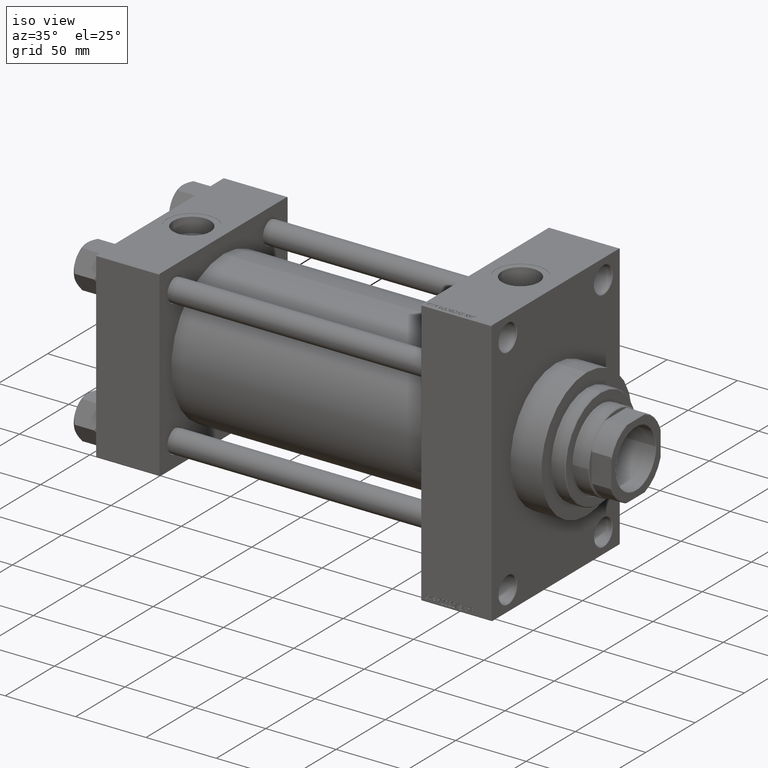
[diagram: clean part render]
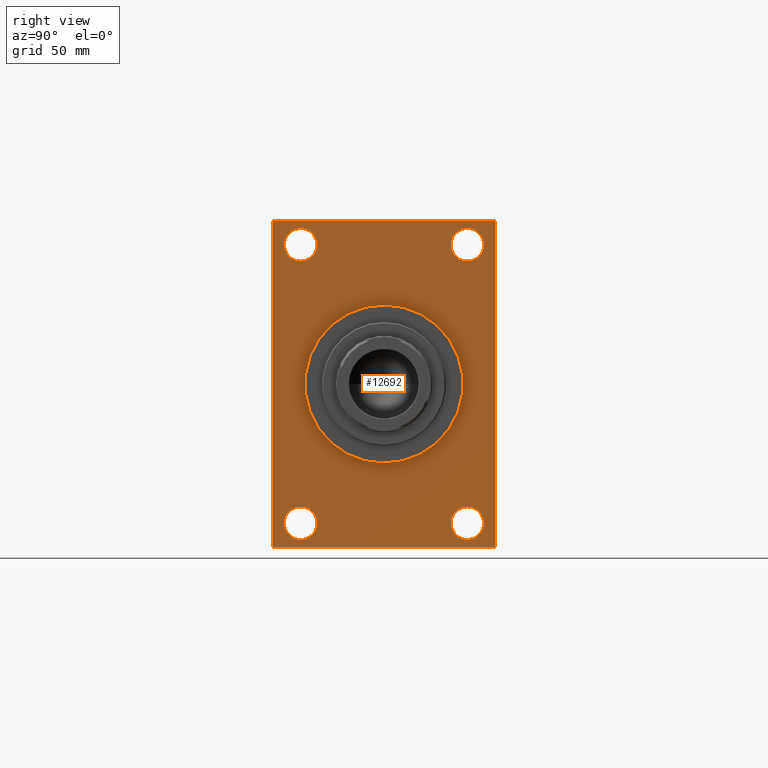
[diagram: tour spotlight — one face highlighted and labeled with its STEP entity id]
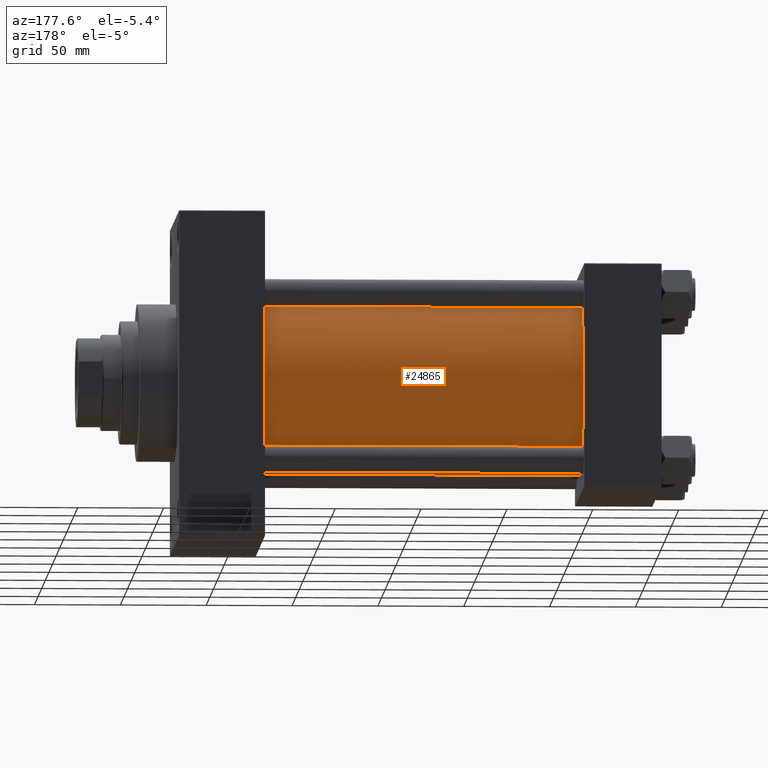
[diagram: tour spotlight — one face highlighted and labeled with its STEP entity id]
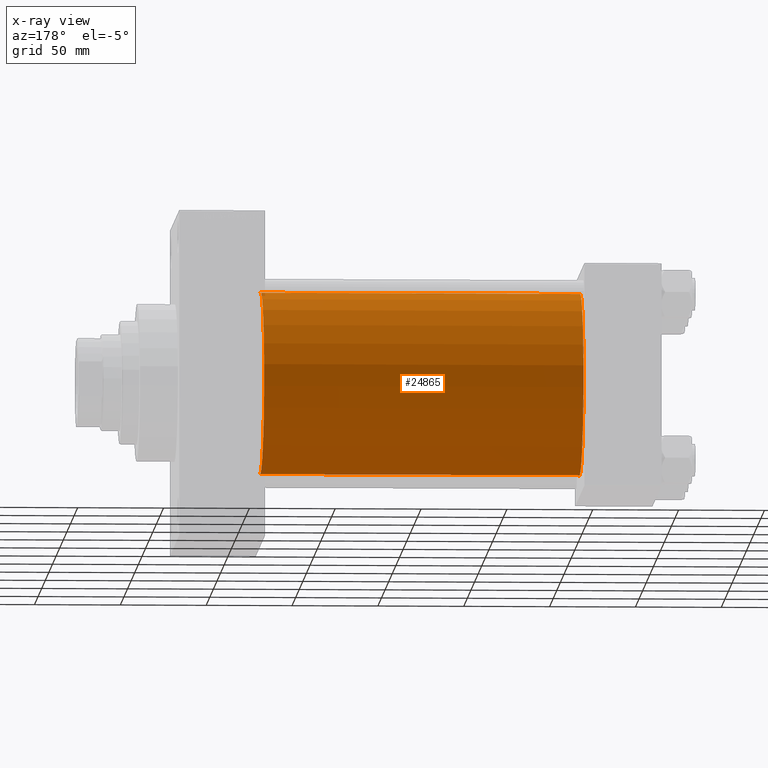
[diagram: x-ray of the same camera — body ghosted, this tour face saturated]
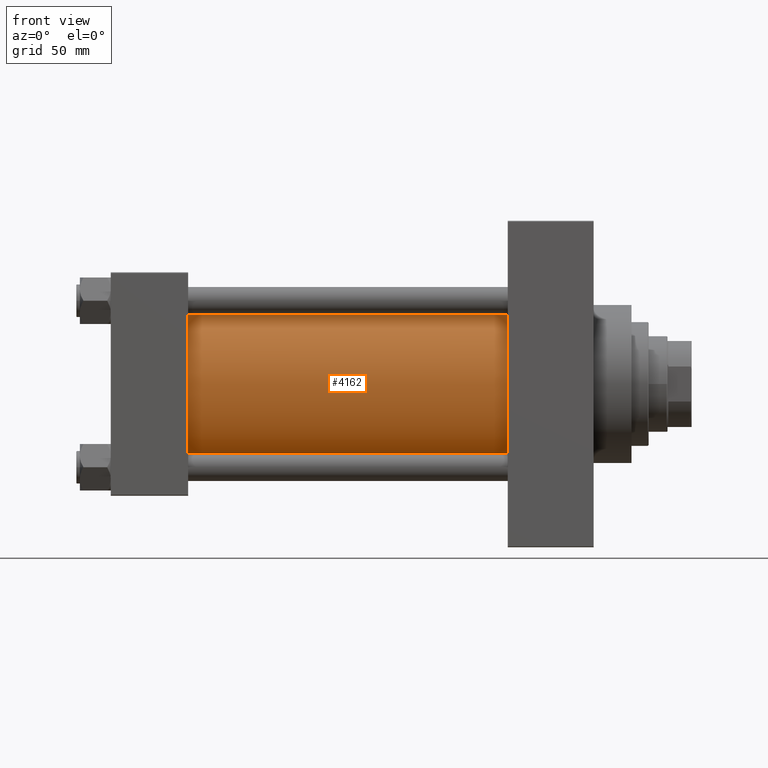
[diagram: tour spotlight — one face highlighted and labeled with its STEP entity id]
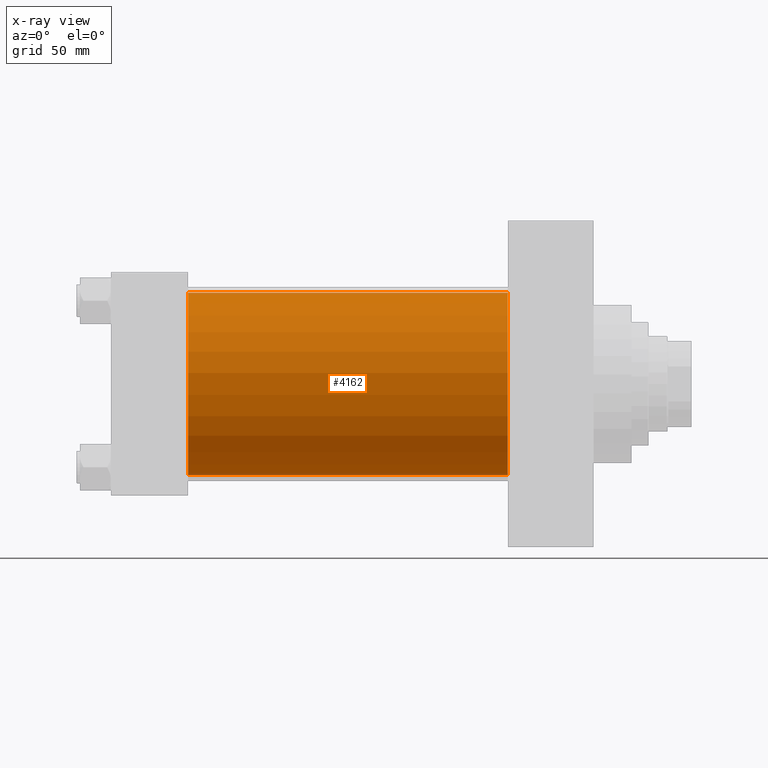
[diagram: x-ray of the same camera — body ghosted, this tour face saturated]
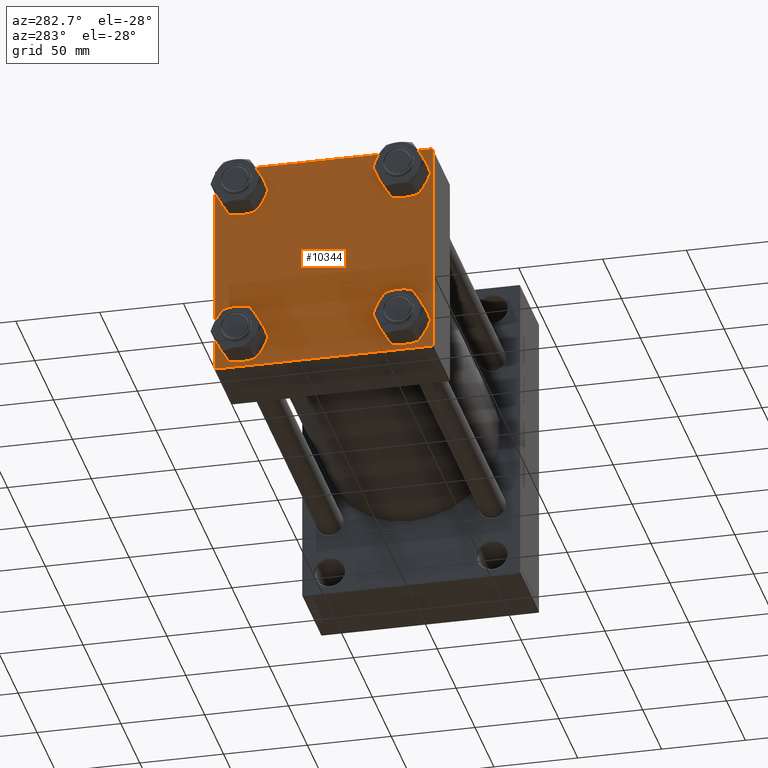
[diagram: tour spotlight — one face highlighted and labeled with its STEP entity id]
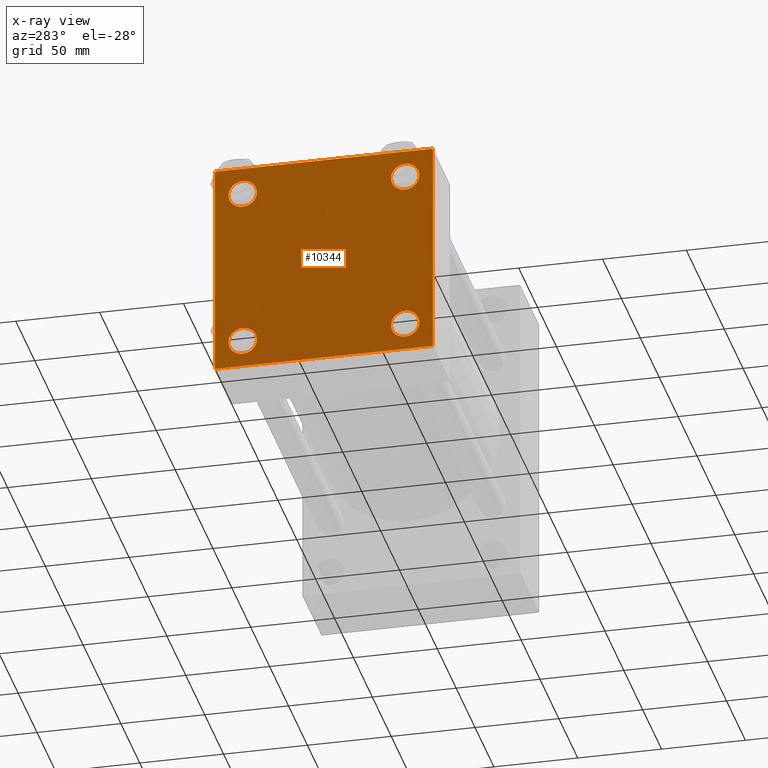
[diagram: x-ray of the same camera — body ghosted, this tour face saturated]
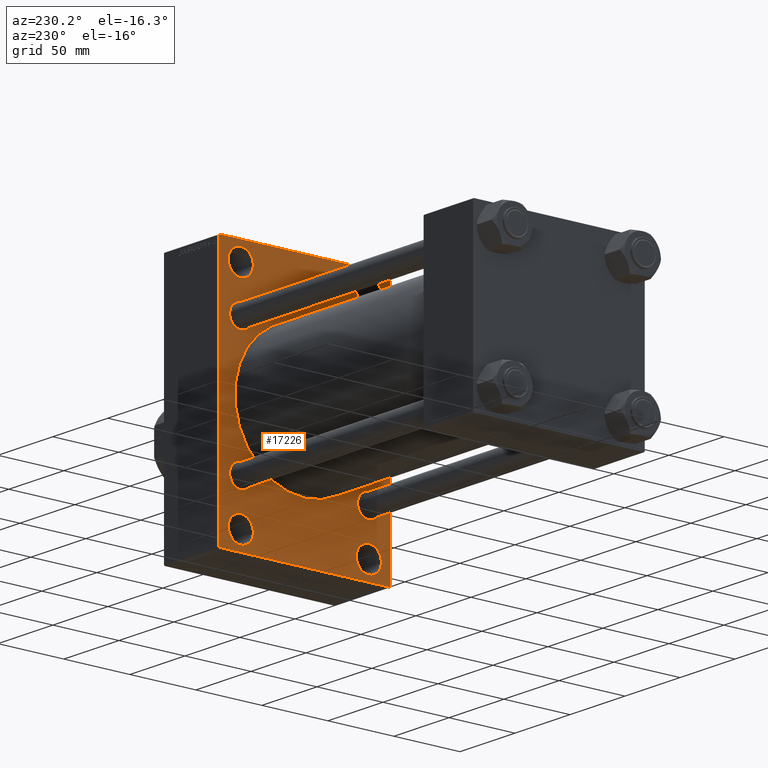
[diagram: tour spotlight — one face highlighted and labeled with its STEP entity id]
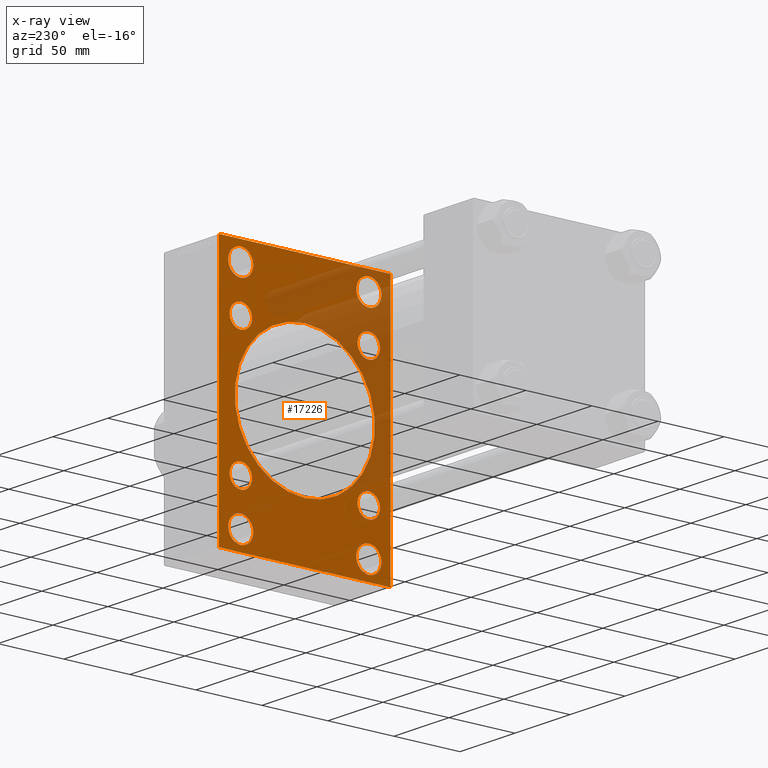
[diagram: x-ray of the same camera — body ghosted, this tour face saturated]
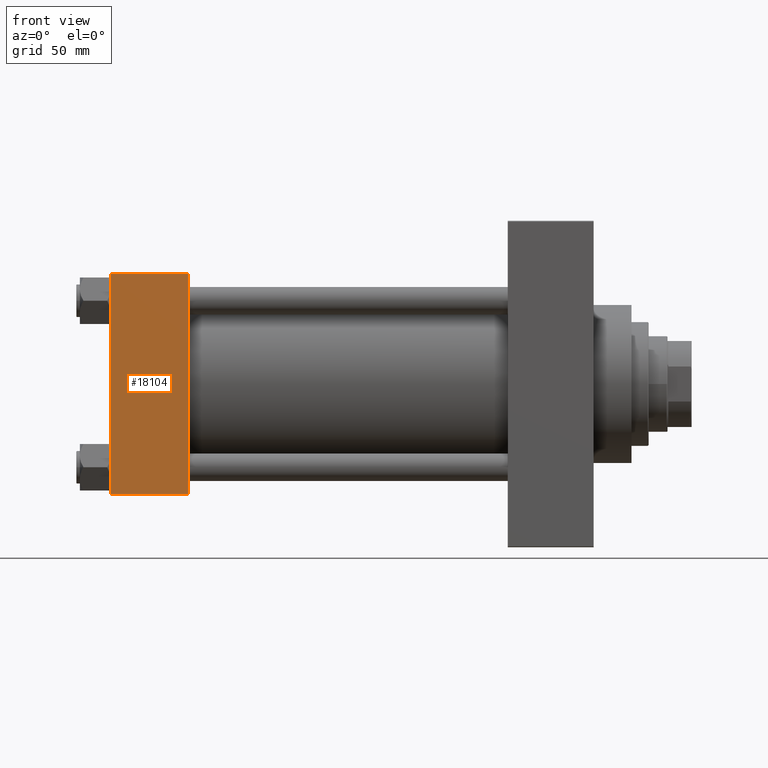
[diagram: tour spotlight — one face highlighted and labeled with its STEP entity id]
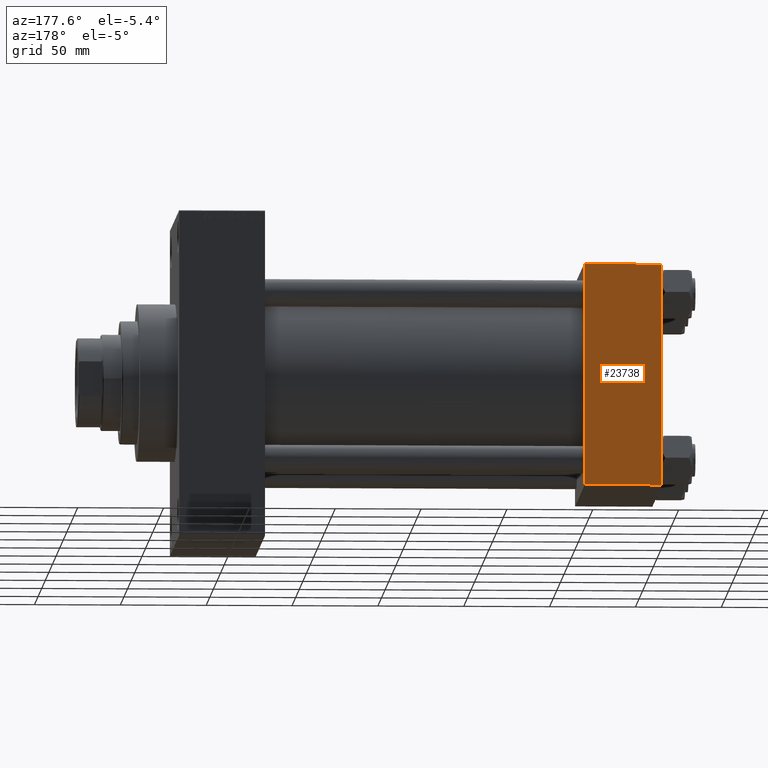
[diagram: tour spotlight — one face highlighted and labeled with its STEP entity id]
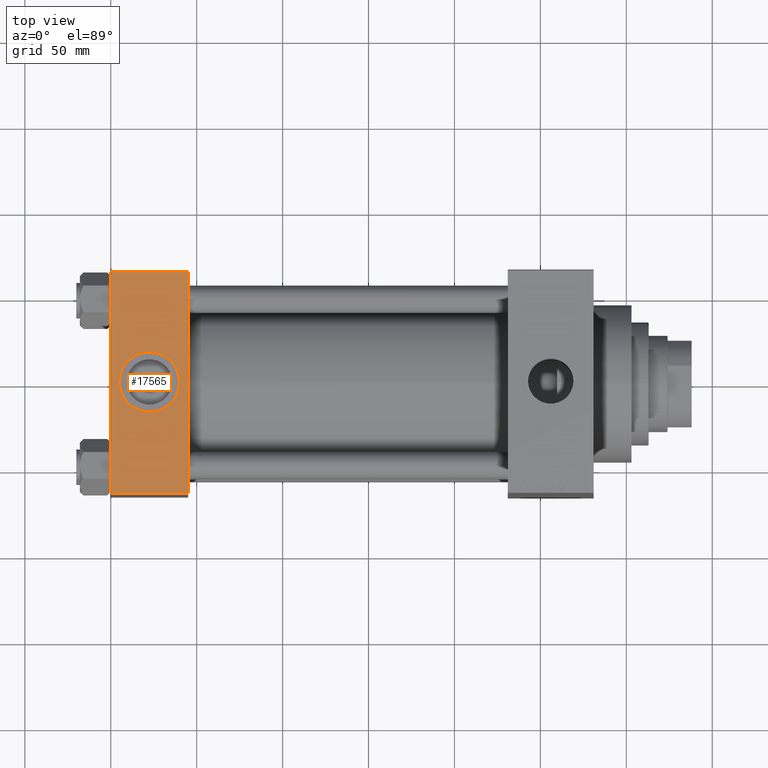
[diagram: tour spotlight — one face highlighted and labeled with its STEP entity id]
A machine part: a face-by-face anatomy tour. The part has 1151 B-rep faces; the first image is the clean iso view, then the 8 largest visible faces are spotlighted one at a time (largest first), each with its STEP entity span.

Face 1 — right view, entity #12692. In plain terms, the highlighted planar face has unit normal (-1, 0, 0).
Definition (entity closure, byte-faithful):
#423 = DIRECTION ( 'NONE',  ( 0.000000000000000000, 0.000000000000000000, -1.000000000000000000 ) ) ;
#508 = AXIS2_PLACEMENT_3D ( 'NONE', #38368, #1445, #20034 ) ;
#516 = AXIS2_PLACEMENT_3D ( 'NONE', #17097, #46547, #6467 ) ;
#543 = CARTESIAN_POINT ( 'NONE',  ( 281.0000000000000000, 64.99999999999998579, -94.49999999999997158 ) ) ;
#644 = AXIS2_PLACEMENT_3D ( 'NONE', #35599, #21125, #10267 ) ;
#1238 = EDGE_CURVE ( 'NONE', #12510, #4317, #42903, .T. ) ;
#1445 = DIRECTION ( 'NONE',  ( -1.000000000000000000, 0.000000000000000000, -0.000000000000000000 ) ) ;
#1463 = EDGE_CURVE ( 'NONE', #33885, #40786, #40983, .T. ) ;
#1598 = LINE ( 'NONE', #17289, #19996 ) ;
#1899 = DIRECTION ( 'NONE',  ( 0.000000000000000000, 0.000000000000000000, 1.000000000000000000 ) ) ;
#2071 = VERTEX_POINT ( 'NONE', #27863 ) ;
#2227 = CARTESIAN_POINT ( 'NONE',  ( 281.0000000000000000, 48.50000000000000711, 90.50000000000007105 ) ) ;
#2257 = EDGE_CURVE ( 'NONE', #35200, #46972, #19144, .T. ) ;
#2612 = ORIENTED_EDGE ( 'NONE', *, *, #5199, .T. ) ;
#2673 = DIRECTION ( 'NONE',  ( -1.000000000000000000, 0.000000000000000000, -0.000000000000000000 ) ) ;
#3096 = ORIENTED_EDGE ( 'NONE', *, *, #26577, .T. ) ;
#3202 = AXIS2_PLACEMENT_3D ( 'NONE', #5173, #19455, #8337 ) ;
#3460 = EDGE_CURVE ( 'NONE', #35989, #46972, #39869, .T. ) ;
#3550 = VERTEX_POINT ( 'NONE', #18384 ) ;
#4191 = CARTESIAN_POINT ( 'NONE',  ( 281.0000000000000000, -48.50000000000000000, 71.49999999999994316 ) ) ;
#4317 = VERTEX_POINT ( 'NONE', #18925 ) ;
#4331 = VERTEX_POINT ( 'NONE', #4191 ) ;
#4936 = EDGE_CURVE ( 'NONE', #4317, #12510, #26049, .T. ) ;
#5173 = CARTESIAN_POINT ( 'NONE',  ( 281.0000000000000000, 0.000000000000000000, 0.000000000000000000 ) ) ;
#5199 = EDGE_CURVE ( 'NONE', #2071, #39681, #29184, .T. ) ;
#5480 = EDGE_LOOP ( 'NONE', ( #44525, #13416, #27767, #30584, #13904, #18676, #41205, #34848 ) ) ;
#6010 = CARTESIAN_POINT ( 'NONE',  ( 281.0000000000000000, -65.00000000000001421, 94.49999999999997158 ) ) ;
#6075 = CARTESIAN_POINT ( 'NONE',  ( 281.0000000000000000, 64.99999999999998579, -94.49999999999997158 ) ) ;
#6467 = DIRECTION ( 'NONE',  ( 0.000000000000000000, 0.000000000000000000, 1.000000000000000000 ) ) ;
#6753 = LINE ( 'NONE', #17866, #16307 ) ;
#7026 = DIRECTION ( 'NONE',  ( 1.000000000000000000, 0.000000000000000000, 0.000000000000000000 ) ) ;
#7262 = CARTESIAN_POINT ( 'NONE',  ( 281.0000000000000000, 48.50000000000000711, -81.00000000000001421 ) ) ;
#8097 = EDGE_LOOP ( 'NONE', ( #15166, #27458 ) ) ;
#8208 = DIRECTION ( 'NONE',  ( -1.000000000000000000, 0.000000000000000000, -0.000000000000000000 ) ) ;
#8337 = DIRECTION ( 'NONE',  ( -0.000000000000000000, 0.000000000000000000, 1.000000000000000000 ) ) ;
#8847 = VERTEX_POINT ( 'NONE', #30169 ) ;
#8879 = EDGE_CURVE ( 'NONE', #4331, #8847, #20024, .T. ) ;
#8883 = ORIENTED_EDGE ( 'NONE', *, *, #40417, .T. ) ;
#9795 = DIRECTION ( 'NONE',  ( 0.000000000000000000, 0.7071067811865474617, -0.7071067811865474617 ) ) ;
#10244 = AXIS2_PLACEMENT_3D ( 'NONE', #28714, #39087, #46343 ) ;
#10267 = DIRECTION ( 'NONE',  ( 0.000000000000000000, 0.000000000000000000, 1.000000000000000000 ) ) ;
#11255 = VERTEX_POINT ( 'NONE', #43187 ) ;
#11602 = EDGE_CURVE ( 'NONE', #35989, #31167, #31303, .T. ) ;
#11870 = DIRECTION ( 'NONE',  ( 0.000000000000000000, -1.000000000000000000, -1.067522139062650425E-16 ) ) ;
#11973 = FACE_BOUND ( 'NONE', #29870, .T. ) ;
#12245 = EDGE_CURVE ( 'NONE', #38135, #33885, #40030, .T. ) ;
#12510 = VERTEX_POINT ( 'NONE', #43379 ) ;
#12692 = ADVANCED_FACE ( 'NONE', ( #44794, #39976, #32739, #29115, #11973, #23541 ), #38487, .F. ) ;
#13240 = DIRECTION ( 'NONE',  ( -1.000000000000000000, 0.000000000000000000, -0.000000000000000000 ) ) ;
#13416 = ORIENTED_EDGE ( 'NONE', *, *, #36337, .T. ) ;
#13904 = ORIENTED_EDGE ( 'NONE', *, *, #3460, .F. ) ;
#14707 = CIRCLE ( 'NONE', #30927, 9.500000000000063949 ) ;
#15150 = CARTESIAN_POINT ( 'NONE',  ( 281.0000000000000000, -65.00000000000001421, 94.99999999999997158 ) ) ;
#15166 = ORIENTED_EDGE ( 'NONE', *, *, #1238, .T. ) ;
#15481 = CARTESIAN_POINT ( 'NONE',  ( 281.0000000000000000, 48.50000000000000711, 71.49999999999994316 ) ) ;
#16307 = VECTOR ( 'NONE', #32587, 1000.000000000000000 ) ;
#16353 = CARTESIAN_POINT ( 'NONE',  ( 281.0000000000000000, -65.00000000000001421, 94.49999999999997158 ) ) ;
#16691 = DIRECTION ( 'NONE',  ( 0.000000000000000000, 0.000000000000000000, 1.000000000000000000 ) ) ;
#17097 = CARTESIAN_POINT ( 'NONE',  ( 281.0000000000000000, 48.50000000000000711, 81.00000000000000000 ) ) ;
#17141 = AXIS2_PLACEMENT_3D ( 'NONE', #24003, #7026, #40325 ) ;
#17289 = CARTESIAN_POINT ( 'NONE',  ( 281.0000000000000000, -64.50000000000001421, -95.00000000000002842 ) ) ;
#17651 = EDGE_LOOP ( 'NONE', ( #2612, #22248 ) ) ;
#17760 = ORIENTED_EDGE ( 'NONE', *, *, #44293, .F. ) ;
#17866 = CARTESIAN_POINT ( 'NONE',  ( 281.0000000000000000, 64.99999999999997158, 94.99999999999997158 ) ) ;
#17940 = ORIENTED_EDGE ( 'NONE', *, *, #39979, .F. ) ;
#18331 = CARTESIAN_POINT ( 'NONE',  ( 281.0000000000000000, -48.49999999999999289, -81.00000000000001421 ) ) ;
#18384 = CARTESIAN_POINT ( 'NONE',  ( 281.0000000000000000, 0.000000000000000000, 46.00000000000000000 ) ) ;
#18676 = ORIENTED_EDGE ( 'NONE', *, *, #11602, .T. ) ;
#18925 = CARTESIAN_POINT ( 'NONE',  ( 281.0000000000000000, -48.49999999999999289, -71.49999999999995737 ) ) ;
#19144 = LINE ( 'NONE', #543, #37564 ) ;
#19455 = DIRECTION ( 'NONE',  ( -1.000000000000000000, 0.000000000000000000, -0.000000000000000000 ) ) ;
#19928 = EDGE_CURVE ( 'NONE', #35409, #30537, #31046, .T. ) ;
#19996 = VECTOR ( 'NONE', #9795, 1000.000000000000114 ) ;
#20024 = CIRCLE ( 'NONE', #37765, 9.500000000000063949 ) ;
#20034 = DIRECTION ( 'NONE',  ( 0.000000000000000000, 0.000000000000000000, 1.000000000000000000 ) ) ;
#20247 = CARTESIAN_POINT ( 'NONE',  ( 281.0000000000000000, 48.50000000000000711, -71.49999999999995737 ) ) ;
#21125 = DIRECTION ( 'NONE',  ( -1.000000000000000000, 0.000000000000000000, -0.000000000000000000 ) ) ;
#22248 = ORIENTED_EDGE ( 'NONE', *, *, #33497, .T. ) ;
#22937 = DIRECTION ( 'NONE',  ( 0.000000000000000000, 0.000000000000000000, 1.000000000000000000 ) ) ;
#23541 = FACE_OUTER_BOUND ( 'NONE', #5480, .T. ) ;
#23564 = DIRECTION ( 'NONE',  ( 0.000000000000000000, 0.000000000000000000, -1.000000000000000000 ) ) ;
#24003 = CARTESIAN_POINT ( 'NONE',  ( 281.0000000000000000, 0.000000000000000000, 0.000000000000000000 ) ) ;
#24347 = CARTESIAN_POINT ( 'NONE',  ( 281.0000000000000000, -48.50000000000000000, 81.00000000000000000 ) ) ;
#24408 = VECTOR ( 'NONE', #423, 1000.000000000000000 ) ;
#25529 = VECTOR ( 'NONE', #27677, 1000.000000000000114 ) ;
#26049 = CIRCLE ( 'NONE', #29153, 9.500000000000063949 ) ;
#26577 = EDGE_CURVE ( 'NONE', #30537, #35409, #42139, .T. ) ;
#26947 = DIRECTION ( 'NONE',  ( 1.000000000000000000, 0.000000000000000000, 0.000000000000000000 ) ) ;
#27458 = ORIENTED_EDGE ( 'NONE', *, *, #4936, .T. ) ;
#27677 = DIRECTION ( 'NONE',  ( 0.000000000000000000, -0.7071067811865474617, 0.7071067811865474617 ) ) ;
#27767 = ORIENTED_EDGE ( 'NONE', *, *, #30519, .F. ) ;
#27863 = CARTESIAN_POINT ( 'NONE',  ( 281.0000000000000000, 48.50000000000000711, -90.50000000000008527 ) ) ;
#28714 = CARTESIAN_POINT ( 'NONE',  ( 281.0000000000000000, 48.50000000000000711, 81.00000000000000000 ) ) ;
#29115 = FACE_BOUND ( 'NONE', #35419, .T. ) ;
#29123 = AXIS2_PLACEMENT_3D ( 'NONE', #7262, #8208, #22937 ) ;
#29153 = AXIS2_PLACEMENT_3D ( 'NONE', #18331, #40292, #44390 ) ;
#29184 = CIRCLE ( 'NONE', #644, 9.500000000000063949 ) ;
#29390 = VECTOR ( 'NONE', #39795, 1000.000000000000000 ) ;
#29870 = EDGE_LOOP ( 'NONE', ( #17760, #17940 ) ) ;
#30169 = CARTESIAN_POINT ( 'NONE',  ( 281.0000000000000000, -48.50000000000000000, 90.50000000000007105 ) ) ;
#30519 = EDGE_CURVE ( 'NONE', #35200, #11255, #44217, .T. ) ;
#30537 = VERTEX_POINT ( 'NONE', #15481 ) ;
#30584 = ORIENTED_EDGE ( 'NONE', *, *, #2257, .T. ) ;
#30647 = CARTESIAN_POINT ( 'NONE',  ( 281.0000000000000000, 64.99999999999997158, 94.49999999999997158 ) ) ;
#30927 = AXIS2_PLACEMENT_3D ( 'NONE', #31893, #2673, #16691 ) ;
#31021 = CIRCLE ( 'NONE', #17141, 46.00000000000000000 ) ;
#31046 = CIRCLE ( 'NONE', #10244, 9.500000000000063949 ) ;
#31167 = VERTEX_POINT ( 'NONE', #35910 ) ;
#31303 = LINE ( 'NONE', #38784, #25529 ) ;
#31893 = CARTESIAN_POINT ( 'NONE',  ( 281.0000000000000000, -48.50000000000000000, 81.00000000000000000 ) ) ;
#32587 = DIRECTION ( 'NONE',  ( 0.000000000000000000, -1.000000000000000000, 0.000000000000000000 ) ) ;
#32690 = CARTESIAN_POINT ( 'NONE',  ( 281.0000000000000000, 64.49999999999992895, -95.00000000000001421 ) ) ;
#32739 = FACE_BOUND ( 'NONE', #17651, .T. ) ;
#33010 = CARTESIAN_POINT ( 'NONE',  ( 281.0000000000000000, -65.00000000000001421, -94.50000000000002842 ) ) ;
#33021 = VECTOR ( 'NONE', #11870, 1000.000000000000000 ) ;
#33497 = EDGE_CURVE ( 'NONE', #39681, #2071, #43765, .T. ) ;
#33840 = EDGE_LOOP ( 'NONE', ( #42557, #8883 ) ) ;
#33885 = VERTEX_POINT ( 'NONE', #16353 ) ;
#34495 = VECTOR ( 'NONE', #47136, 1000.000000000000000 ) ;
#34737 = CIRCLE ( 'NONE', #38594, 46.00000000000000000 ) ;
#34848 = ORIENTED_EDGE ( 'NONE', *, *, #12245, .T. ) ;
#35200 = VERTEX_POINT ( 'NONE', #32690 ) ;
#35409 = VERTEX_POINT ( 'NONE', #2227 ) ;
#35419 = EDGE_LOOP ( 'NONE', ( #3096, #46734 ) ) ;
#35599 = CARTESIAN_POINT ( 'NONE',  ( 281.0000000000000000, 48.50000000000000711, -81.00000000000001421 ) ) ;
#35910 = CARTESIAN_POINT ( 'NONE',  ( 281.0000000000000000, 64.49999999999997158, 94.99999999999997158 ) ) ;
#35989 = VERTEX_POINT ( 'NONE', #30647 ) ;
#36042 = CARTESIAN_POINT ( 'NONE',  ( 281.0000000000000000, 0.000000000000000000, 0.000000000000000000 ) ) ;
#36263 = CARTESIAN_POINT ( 'NONE',  ( 281.0000000000000000, 64.99999999999997158, 94.99999999999997158 ) ) ;
#36337 = EDGE_CURVE ( 'NONE', #40786, #11255, #1598, .T. ) ;
#37208 = CARTESIAN_POINT ( 'NONE',  ( 281.0000000000000000, 64.99999999999998579, -95.00000000000001421 ) ) ;
#37564 = VECTOR ( 'NONE', #44255, 999.9999999999998863 ) ;
#37670 = CARTESIAN_POINT ( 'NONE',  ( 281.0000000000000000, -64.50000000000002842, 94.99999999999997158 ) ) ;
#37752 = CARTESIAN_POINT ( 'NONE',  ( 281.0000000000000000, 5.633375276077824704E-15, -46.00000000000000000 ) ) ;
#37765 = AXIS2_PLACEMENT_3D ( 'NONE', #24347, #13240, #1899 ) ;
#38135 = VERTEX_POINT ( 'NONE', #37670 ) ;
#38368 = CARTESIAN_POINT ( 'NONE',  ( 281.0000000000000000, -48.49999999999999289, -81.00000000000001421 ) ) ;
#38487 = PLANE ( 'NONE',  #3202 ) ;
#38594 = AXIS2_PLACEMENT_3D ( 'NONE', #36042, #26947, #23564 ) ;
#38784 = CARTESIAN_POINT ( 'NONE',  ( 281.0000000000000000, 64.49999999999997158, 94.99999999999997158 ) ) ;
#39036 = VERTEX_POINT ( 'NONE', #37752 ) ;
#39087 = DIRECTION ( 'NONE',  ( -1.000000000000000000, 0.000000000000000000, -0.000000000000000000 ) ) ;
#39681 = VERTEX_POINT ( 'NONE', #20247 ) ;
#39795 = DIRECTION ( 'NONE',  ( -0.000000000000000000, -0.7071067811865378028, -0.7071067811865573427 ) ) ;
#39869 = LINE ( 'NONE', #36263, #34495 ) ;
#39976 = FACE_BOUND ( 'NONE', #8097, .T. ) ;
#39979 = EDGE_CURVE ( 'NONE', #39036, #3550, #34737, .T. ) ;
#40030 = LINE ( 'NONE', #6010, #29390 ) ;
#40292 = DIRECTION ( 'NONE',  ( -1.000000000000000000, 0.000000000000000000, -0.000000000000000000 ) ) ;
#40325 = DIRECTION ( 'NONE',  ( 0.000000000000000000, 0.000000000000000000, -1.000000000000000000 ) ) ;
#40417 = EDGE_CURVE ( 'NONE', #8847, #4331, #14707, .T. ) ;
#40786 = VERTEX_POINT ( 'NONE', #33010 ) ;
#40983 = LINE ( 'NONE', #15150, #24408 ) ;
#41205 = ORIENTED_EDGE ( 'NONE', *, *, #41684, .T. ) ;
#41684 = EDGE_CURVE ( 'NONE', #31167, #38135, #6753, .T. ) ;
#42139 = CIRCLE ( 'NONE', #516, 9.500000000000063949 ) ;
#42557 = ORIENTED_EDGE ( 'NONE', *, *, #8879, .T. ) ;
#42903 = CIRCLE ( 'NONE', #508, 9.500000000000063949 ) ;
#43187 = CARTESIAN_POINT ( 'NONE',  ( 281.0000000000000000, -64.50000000000001421, -95.00000000000002842 ) ) ;
#43379 = CARTESIAN_POINT ( 'NONE',  ( 281.0000000000000000, -48.49999999999999289, -90.50000000000008527 ) ) ;
#43765 = CIRCLE ( 'NONE', #29123, 9.500000000000063949 ) ;
#44217 = LINE ( 'NONE', #37208, #33021 ) ;
#44255 = DIRECTION ( 'NONE',  ( -0.000000000000000000, 0.7071067811865574537, 0.7071067811865376918 ) ) ;
#44293 = EDGE_CURVE ( 'NONE', #3550, #39036, #31021, .T. ) ;
#44390 = DIRECTION ( 'NONE',  ( 0.000000000000000000, 0.000000000000000000, 1.000000000000000000 ) ) ;
#44525 = ORIENTED_EDGE ( 'NONE', *, *, #1463, .T. ) ;
#44794 = FACE_BOUND ( 'NONE', #33840, .T. ) ;
#46343 = DIRECTION ( 'NONE',  ( 0.000000000000000000, 0.000000000000000000, 1.000000000000000000 ) ) ;
#46547 = DIRECTION ( 'NONE',  ( -1.000000000000000000, 0.000000000000000000, -0.000000000000000000 ) ) ;
#46734 = ORIENTED_EDGE ( 'NONE', *, *, #19928, .T. ) ;
#46972 = VERTEX_POINT ( 'NONE', #6075 ) ;
#47136 = DIRECTION ( 'NONE',  ( 0.000000000000000000, 7.304098846218135653E-17, -1.000000000000000000 ) ) ;

Face 2 — auxiliary view, entity #24865. An x-ray twin of the same camera follows (body ghosted, this face saturated) — the face is partly hidden behind the body. In plain terms, the highlighted cylindrical surface (partial cylindrical patch) has radius 53 mm, axis along (-1, -0, -0).
Definition (entity closure, byte-faithful):
#187 = DIRECTION ( 'NONE',  ( -1.000000000000000000, -0.000000000000000000, -0.000000000000000000 ) ) ;
#2798 = CARTESIAN_POINT ( 'NONE',  ( 230.9999999999999716, -2.602085213965210642E-15, 53.00000000000000711 ) ) ;
#5106 = ORIENTED_EDGE ( 'NONE', *, *, #28073, .F. ) ;
#6845 = VERTEX_POINT ( 'NONE', #17573 ) ;
#7191 = EDGE_CURVE ( 'NONE', #26445, #13894, #22313, .T. ) ;
#8445 = VECTOR ( 'NONE', #10744, 1000.000000000000000 ) ;
#8659 = CARTESIAN_POINT ( 'NONE',  ( 230.9999999999999716, 3.888542821515760888E-15, -53.00000000000000711 ) ) ;
#10744 = DIRECTION ( 'NONE',  ( -1.000000000000000000, -0.000000000000000000, -0.000000000000000000 ) ) ;
#11392 = EDGE_CURVE ( 'NONE', #11638, #6845, #33026, .T. ) ;
#11638 = VERTEX_POINT ( 'NONE', #2798 ) ;
#13883 = CARTESIAN_POINT ( 'NONE',  ( 230.9999999999999716, 3.888542821515760888E-15, -53.00000000000000711 ) ) ;
#13894 = VERTEX_POINT ( 'NONE', #30432 ) ;
#14684 = FACE_OUTER_BOUND ( 'NONE', #27197, .T. ) ;
#17573 = CARTESIAN_POINT ( 'NONE',  ( 44.99999999999998579, -2.602085213965210642E-15, 53.00000000000000711 ) ) ;
#19369 = ORIENTED_EDGE ( 'NONE', *, *, #7191, .T. ) ;
#20992 = DIRECTION ( 'NONE',  ( 0.000000000000000000, 0.000000000000000000, -1.000000000000000000 ) ) ;
#21240 = DIRECTION ( 'NONE',  ( 0.000000000000000000, 0.000000000000000000, 1.000000000000000000 ) ) ;
#22132 = AXIS2_PLACEMENT_3D ( 'NONE', #37904, #42463, #20992 ) ;
#22313 = LINE ( 'NONE', #13883, #8445 ) ;
#22954 = EDGE_CURVE ( 'NONE', #13894, #6845, #41962, .T. ) ;
#24746 = VECTOR ( 'NONE', #187, 1000.000000000000000 ) ;
#24865 = ADVANCED_FACE ( 'NONE', ( #14684 ), #29180, .T. ) ;
#26062 = DIRECTION ( 'NONE',  ( 0.000000000000000000, 0.000000000000000000, 1.000000000000000000 ) ) ;
#26445 = VERTEX_POINT ( 'NONE', #8659 ) ;
#27197 = EDGE_LOOP ( 'NONE', ( #5106, #19369, #31359, #44842 ) ) ;
#28073 = EDGE_CURVE ( 'NONE', #26445, #11638, #33671, .T. ) ;
#29180 = CYLINDRICAL_SURFACE ( 'NONE', #41197, 53.00000000000000711 ) ;
#30432 = CARTESIAN_POINT ( 'NONE',  ( 44.99999999999998579, 3.888542821515760888E-15, -53.00000000000000711 ) ) ;
#31359 = ORIENTED_EDGE ( 'NONE', *, *, #22954, .T. ) ;
#32699 = AXIS2_PLACEMENT_3D ( 'NONE', #33070, #44403, #26062 ) ;
#33026 = LINE ( 'NONE', #40978, #24746 ) ;
#33070 = CARTESIAN_POINT ( 'NONE',  ( 44.99999999999998579, -2.602085213965210642E-15, 0.000000000000000000 ) ) ;
#33671 = CIRCLE ( 'NONE', #22132, 53.00000000000000711 ) ;
#36438 = DIRECTION ( 'NONE',  ( -1.000000000000000000, -0.000000000000000000, -0.000000000000000000 ) ) ;
#37904 = CARTESIAN_POINT ( 'NONE',  ( 230.9999999999999716, -2.602085213965210642E-15, 0.000000000000000000 ) ) ;
#40280 = CARTESIAN_POINT ( 'NONE',  ( 230.9999999999999716, -2.602085213965210642E-15, 0.000000000000000000 ) ) ;
#40978 = CARTESIAN_POINT ( 'NONE',  ( 230.9999999999999716, -2.602085213965210642E-15, 53.00000000000000711 ) ) ;
#41197 = AXIS2_PLACEMENT_3D ( 'NONE', #40280, #36438, #21240 ) ;
#41962 = CIRCLE ( 'NONE', #32699, 53.00000000000000711 ) ;
#42463 = DIRECTION ( 'NONE',  ( 1.000000000000000000, 0.000000000000000000, 0.000000000000000000 ) ) ;
#44403 = DIRECTION ( 'NONE',  ( 1.000000000000000000, -0.000000000000000000, 0.000000000000000000 ) ) ;
#44842 = ORIENTED_EDGE ( 'NONE', *, *, #11392, .F. ) ;

Face 3 — front view, entity #4162. An x-ray twin of the same camera follows (body ghosted, this face saturated) — the face is partly hidden behind the body. In plain terms, the highlighted cylindrical surface (partial cylindrical patch) has radius 53 mm, axis along (-1, -0, -0).
Definition (entity closure, byte-faithful):
#187 = DIRECTION ( 'NONE',  ( -1.000000000000000000, -0.000000000000000000, -0.000000000000000000 ) ) ;
#1370 = AXIS2_PLACEMENT_3D ( 'NONE', #13465, #9839, #13219 ) ;
#1843 = ORIENTED_EDGE ( 'NONE', *, *, #11392, .T. ) ;
#2798 = CARTESIAN_POINT ( 'NONE',  ( 230.9999999999999716, -2.602085213965210642E-15, 53.00000000000000711 ) ) ;
#4162 = ADVANCED_FACE ( 'NONE', ( #10091 ), #47657, .T. ) ;
#4442 = DIRECTION ( 'NONE',  ( 0.000000000000000000, 0.000000000000000000, -1.000000000000000000 ) ) ;
#6845 = VERTEX_POINT ( 'NONE', #17573 ) ;
#7191 = EDGE_CURVE ( 'NONE', #26445, #13894, #22313, .T. ) ;
#7432 = DIRECTION ( 'NONE',  ( 1.000000000000000000, -0.000000000000000000, 0.000000000000000000 ) ) ;
#8445 = VECTOR ( 'NONE', #10744, 1000.000000000000000 ) ;
#8639 = ORIENTED_EDGE ( 'NONE', *, *, #28211, .T. ) ;
#8659 = CARTESIAN_POINT ( 'NONE',  ( 230.9999999999999716, 3.888542821515760888E-15, -53.00000000000000711 ) ) ;
#9839 = DIRECTION ( 'NONE',  ( -1.000000000000000000, -0.000000000000000000, -0.000000000000000000 ) ) ;
#10091 = FACE_OUTER_BOUND ( 'NONE', #46325, .T. ) ;
#10744 = DIRECTION ( 'NONE',  ( -1.000000000000000000, -0.000000000000000000, -0.000000000000000000 ) ) ;
#11392 = EDGE_CURVE ( 'NONE', #11638, #6845, #33026, .T. ) ;
#11638 = VERTEX_POINT ( 'NONE', #2798 ) ;
#13219 = DIRECTION ( 'NONE',  ( 0.000000000000000000, 0.000000000000000000, 1.000000000000000000 ) ) ;
#13465 = CARTESIAN_POINT ( 'NONE',  ( 230.9999999999999716, -2.602085213965210642E-15, 0.000000000000000000 ) ) ;
#13883 = CARTESIAN_POINT ( 'NONE',  ( 230.9999999999999716, 3.888542821515760888E-15, -53.00000000000000711 ) ) ;
#13894 = VERTEX_POINT ( 'NONE', #30432 ) ;
#15436 = ORIENTED_EDGE ( 'NONE', *, *, #42386, .F. ) ;
#15973 = AXIS2_PLACEMENT_3D ( 'NONE', #43656, #7432, #18784 ) ;
#17517 = CIRCLE ( 'NONE', #15973, 53.00000000000000711 ) ;
#17573 = CARTESIAN_POINT ( 'NONE',  ( 44.99999999999998579, -2.602085213965210642E-15, 53.00000000000000711 ) ) ;
#18784 = DIRECTION ( 'NONE',  ( 0.000000000000000000, 0.000000000000000000, 1.000000000000000000 ) ) ;
#19178 = CARTESIAN_POINT ( 'NONE',  ( 230.9999999999999716, -2.602085213965210642E-15, 0.000000000000000000 ) ) ;
#22313 = LINE ( 'NONE', #13883, #8445 ) ;
#24487 = ORIENTED_EDGE ( 'NONE', *, *, #7191, .F. ) ;
#24746 = VECTOR ( 'NONE', #187, 1000.000000000000000 ) ;
#26445 = VERTEX_POINT ( 'NONE', #8659 ) ;
#27127 = AXIS2_PLACEMENT_3D ( 'NONE', #19178, #36802, #4442 ) ;
#28211 = EDGE_CURVE ( 'NONE', #6845, #13894, #17517, .T. ) ;
#30432 = CARTESIAN_POINT ( 'NONE',  ( 44.99999999999998579, 3.888542821515760888E-15, -53.00000000000000711 ) ) ;
#33026 = LINE ( 'NONE', #40978, #24746 ) ;
#36802 = DIRECTION ( 'NONE',  ( 1.000000000000000000, 0.000000000000000000, 0.000000000000000000 ) ) ;
#40978 = CARTESIAN_POINT ( 'NONE',  ( 230.9999999999999716, -2.602085213965210642E-15, 53.00000000000000711 ) ) ;
#42386 = EDGE_CURVE ( 'NONE', #11638, #26445, #44066, .T. ) ;
#43656 = CARTESIAN_POINT ( 'NONE',  ( 44.99999999999998579, -2.602085213965210642E-15, 0.000000000000000000 ) ) ;
#44066 = CIRCLE ( 'NONE', #27127, 53.00000000000000711 ) ;
#46325 = EDGE_LOOP ( 'NONE', ( #24487, #15436, #1843, #8639 ) ) ;
#47657 = CYLINDRICAL_SURFACE ( 'NONE', #1370, 53.00000000000000711 ) ;

Face 4 — auxiliary view, entity #10344. An x-ray twin of the same camera follows (body ghosted, this face saturated) — the face is partly hidden behind the body. In plain terms, the highlighted planar face has unit normal (-1, 0, 0).
Definition (entity closure, byte-faithful):
#371 = EDGE_CURVE ( 'NONE', #42687, #38652, #12826, .T. ) ;
#623 = CARTESIAN_POINT ( 'NONE',  ( 0.000000000000000000, 48.45000000000000995, -56.95000000000002416 ) ) ;
#717 = CARTESIAN_POINT ( 'NONE',  ( 0.000000000000000000, -48.44999999999999574, 48.45000000000003126 ) ) ;
#755 = CARTESIAN_POINT ( 'NONE',  ( 0.000000000000000000, 48.45000000000000995, 56.95000000000002416 ) ) ;
#1599 = FACE_BOUND ( 'NONE', #43181, .T. ) ;
#2267 = EDGE_CURVE ( 'NONE', #36021, #21130, #16749, .T. ) ;
#2379 = ORIENTED_EDGE ( 'NONE', *, *, #37674, .T. ) ;
#2512 = ORIENTED_EDGE ( 'NONE', *, *, #46563, .F. ) ;
#2911 = ORIENTED_EDGE ( 'NONE', *, *, #44849, .T. ) ;
#3396 = DIRECTION ( 'NONE',  ( 0.000000000000000000, 0.000000000000000000, -1.000000000000000000 ) ) ;
#3564 = EDGE_CURVE ( 'NONE', #27081, #39307, #11625, .T. ) ;
#3720 = AXIS2_PLACEMENT_3D ( 'NONE', #10481, #17959, #11853 ) ;
#4380 = EDGE_CURVE ( 'NONE', #10030, #46932, #9496, .T. ) ;
#4569 = CARTESIAN_POINT ( 'NONE',  ( 0.000000000000000000, -48.44999999999999574, 56.95000000000003837 ) ) ;
#5002 = DIRECTION ( 'NONE',  ( 0.000000000000000000, 0.000000000000000000, 1.000000000000000000 ) ) ;
#6850 = CARTESIAN_POINT ( 'NONE',  ( 0.000000000000000000, -48.44999999999999574, 39.95000000000001705 ) ) ;
#7149 = EDGE_LOOP ( 'NONE', ( #28953, #40125, #21133, #42639, #20191, #44349, #2512, #33282 ) ) ;
#7528 = CARTESIAN_POINT ( 'NONE',  ( 0.000000000000000000, 65.00000000000000000, 64.49999999999998579 ) ) ;
#8751 = EDGE_CURVE ( 'NONE', #10190, #34115, #41736, .T. ) ;
#9032 = CARTESIAN_POINT ( 'NONE',  ( -0.000000000000000000, -64.74999999999819522, 64.75000000000179057 ) ) ;
#9323 = FACE_OUTER_BOUND ( 'NONE', #7149, .T. ) ;
#9496 = LINE ( 'NONE', #31457, #41447 ) ;
#10030 = VERTEX_POINT ( 'NONE', #32778 ) ;
#10190 = VERTEX_POINT ( 'NONE', #47041 ) ;
#10344 = ADVANCED_FACE ( 'NONE', ( #12713, #1599, #27431, #17053, #9323 ), #16579, .T. ) ;
#10481 = CARTESIAN_POINT ( 'NONE',  ( 0.000000000000000000, -48.44999999999999574, -48.45000000000003126 ) ) ;
#10752 = VERTEX_POINT ( 'NONE', #755 ) ;
#11345 = CARTESIAN_POINT ( 'NONE',  ( 0.000000000000000000, 65.00000000000000000, 65.00000000000001421 ) ) ;
#11376 = CARTESIAN_POINT ( 'NONE',  ( 0.000000000000000000, 64.74999999999998579, 64.74999999999998579 ) ) ;
#11577 = DIRECTION ( 'NONE',  ( 0.000000000000000000, 0.000000000000000000, -1.000000000000000000 ) ) ;
#11625 = LINE ( 'NONE', #11376, #46074 ) ;
#11692 = AXIS2_PLACEMENT_3D ( 'NONE', #40776, #15185, #41733 ) ;
#11853 = DIRECTION ( 'NONE',  ( 0.000000000000000000, 0.000000000000000000, 1.000000000000000000 ) ) ;
#11931 = CARTESIAN_POINT ( 'NONE',  ( 0.000000000000000000, -64.75000000000176215, -64.74999999999816680 ) ) ;
#12389 = DIRECTION ( 'NONE',  ( -0.000000000000000000, -0.7071067811865474617, -0.7071067811865474617 ) ) ;
#12433 = DIRECTION ( 'NONE',  ( -0.000000000000000000, 0.7071067811865672237, 0.7071067811865279218 ) ) ;
#12713 = FACE_BOUND ( 'NONE', #18063, .T. ) ;
#12730 = CARTESIAN_POINT ( 'NONE',  ( 0.000000000000000000, 48.45000000000000995, 48.45000000000001705 ) ) ;
#12826 = CIRCLE ( 'NONE', #28226, 8.500000000000007105 ) ;
#13102 = VERTEX_POINT ( 'NONE', #41339 ) ;
#14144 = CARTESIAN_POINT ( 'NONE',  ( 0.000000000000000000, 48.45000000000000995, 48.45000000000001705 ) ) ;
#14601 = AXIS2_PLACEMENT_3D ( 'NONE', #22580, #37298, #45022 ) ;
#15035 = VECTOR ( 'NONE', #12389, 1000.000000000000114 ) ;
#15043 = ORIENTED_EDGE ( 'NONE', *, *, #2267, .T. ) ;
#15185 = DIRECTION ( 'NONE',  ( 1.000000000000000000, -0.000000000000000000, 0.000000000000000000 ) ) ;
#15520 = DIRECTION ( 'NONE',  ( 1.000000000000000000, -0.000000000000000000, 0.000000000000000000 ) ) ;
#16019 = DIRECTION ( 'NONE',  ( 0.000000000000000000, -0.7071067811865279218, 0.7071067811865671127 ) ) ;
#16579 = PLANE ( 'NONE',  #24680 ) ;
#16749 = CIRCLE ( 'NONE', #39865, 8.500000000000007105 ) ;
#17053 = FACE_BOUND ( 'NONE', #42436, .T. ) ;
#17959 = DIRECTION ( 'NONE',  ( 1.000000000000000000, -0.000000000000000000, 0.000000000000000000 ) ) ;
#18063 = EDGE_LOOP ( 'NONE', ( #44046, #29579 ) ) ;
#18263 = VERTEX_POINT ( 'NONE', #21774 ) ;
#18416 = ORIENTED_EDGE ( 'NONE', *, *, #33878, .T. ) ;
#18436 = CARTESIAN_POINT ( 'NONE',  ( 0.000000000000000000, -64.49999999999997158, 65.00000000000000000 ) ) ;
#19001 = EDGE_CURVE ( 'NONE', #46932, #34115, #33641, .T. ) ;
#19645 = DIRECTION ( 'NONE',  ( 0.000000000000000000, -1.000000000000000000, -1.067522139062650425E-16 ) ) ;
#20191 = ORIENTED_EDGE ( 'NONE', *, *, #8751, .F. ) ;
#20435 = CARTESIAN_POINT ( 'NONE',  ( 0.000000000000000000, 0.000000000000000000, 0.000000000000000000 ) ) ;
#21130 = VERTEX_POINT ( 'NONE', #623 ) ;
#21133 = ORIENTED_EDGE ( 'NONE', *, *, #4380, .T. ) ;
#21774 = CARTESIAN_POINT ( 'NONE',  ( 0.000000000000000000, 48.45000000000000995, 39.95000000000000284 ) ) ;
#22095 = DIRECTION ( 'NONE',  ( 1.000000000000000000, -0.000000000000000000, 0.000000000000000000 ) ) ;
#22328 = AXIS2_PLACEMENT_3D ( 'NONE', #14144, #22095, #36113 ) ;
#22503 = VECTOR ( 'NONE', #23821, 1000.000000000000000 ) ;
#22527 = CARTESIAN_POINT ( 'NONE',  ( 0.000000000000000000, 48.45000000000000995, -48.45000000000001705 ) ) ;
#22580 = CARTESIAN_POINT ( 'NONE',  ( 0.000000000000000000, -48.44999999999999574, -48.45000000000003126 ) ) ;
#23117 = CARTESIAN_POINT ( 'NONE',  ( 0.000000000000000000, 48.45000000000000995, -48.45000000000001705 ) ) ;
#23653 = EDGE_CURVE ( 'NONE', #39307, #47282, #37173, .T. ) ;
#23821 = DIRECTION ( 'NONE',  ( 0.000000000000000000, -1.000000000000000000, -1.067522139062650425E-16 ) ) ;
#23824 = DIRECTION ( 'NONE',  ( 1.000000000000000000, -0.000000000000000000, 0.000000000000000000 ) ) ;
#24247 = ORIENTED_EDGE ( 'NONE', *, *, #37430, .T. ) ;
#24532 = DIRECTION ( 'NONE',  ( -1.000000000000000000, 0.000000000000000000, -0.000000000000000000 ) ) ;
#24546 = CIRCLE ( 'NONE', #42244, 8.500000000000007105 ) ;
#24680 = AXIS2_PLACEMENT_3D ( 'NONE', #20435, #24532, #28142 ) ;
#25043 = VERTEX_POINT ( 'NONE', #18436 ) ;
#25123 = EDGE_CURVE ( 'NONE', #47282, #10030, #31210, .T. ) ;
#25955 = CARTESIAN_POINT ( 'NONE',  ( 0.000000000000000000, -65.00000000000000000, -64.49999999999991473 ) ) ;
#26187 = CIRCLE ( 'NONE', #22328, 8.500000000000007105 ) ;
#26534 = VECTOR ( 'NONE', #3396, 1000.000000000000000 ) ;
#26774 = CARTESIAN_POINT ( 'NONE',  ( 0.000000000000000000, -65.00000000000000000, 65.00000000000000000 ) ) ;
#27081 = VERTEX_POINT ( 'NONE', #30756 ) ;
#27342 = CARTESIAN_POINT ( 'NONE',  ( 0.000000000000000000, -64.49999999999994316, -65.00000000000000000 ) ) ;
#27431 = FACE_BOUND ( 'NONE', #47610, .T. ) ;
#28142 = DIRECTION ( 'NONE',  ( -0.000000000000000000, 0.000000000000000000, 1.000000000000000000 ) ) ;
#28226 = AXIS2_PLACEMENT_3D ( 'NONE', #717, #36478, #28986 ) ;
#28488 = CARTESIAN_POINT ( 'NONE',  ( 0.000000000000000000, -48.44999999999999574, -39.95000000000001705 ) ) ;
#28953 = ORIENTED_EDGE ( 'NONE', *, *, #23653, .T. ) ;
#28986 = DIRECTION ( 'NONE',  ( 0.000000000000000000, 0.000000000000000000, 1.000000000000000000 ) ) ;
#29579 = ORIENTED_EDGE ( 'NONE', *, *, #41897, .T. ) ;
#29722 = DIRECTION ( 'NONE',  ( 0.000000000000000000, 0.7071067811865474617, -0.7071067811865474617 ) ) ;
#30302 = AXIS2_PLACEMENT_3D ( 'NONE', #12730, #42164, #5002 ) ;
#30371 = LINE ( 'NONE', #46023, #22503 ) ;
#30756 = CARTESIAN_POINT ( 'NONE',  ( 0.000000000000000000, 64.49999999999997158, 65.00000000000001421 ) ) ;
#31210 = LINE ( 'NONE', #34586, #15035 ) ;
#31457 = CARTESIAN_POINT ( 'NONE',  ( 0.000000000000000000, 65.00000000000000000, -64.99999999999998579 ) ) ;
#32501 = CIRCLE ( 'NONE', #11692, 8.500000000000007105 ) ;
#32778 = CARTESIAN_POINT ( 'NONE',  ( 0.000000000000000000, 64.49999999999997158, -64.99999999999998579 ) ) ;
#32952 = ORIENTED_EDGE ( 'NONE', *, *, #34414, .T. ) ;
#33282 = ORIENTED_EDGE ( 'NONE', *, *, #3564, .T. ) ;
#33517 = CARTESIAN_POINT ( 'NONE',  ( 0.000000000000000000, 65.00000000000000000, -64.49999999999995737 ) ) ;
#33641 = LINE ( 'NONE', #11931, #34898 ) ;
#33878 = EDGE_CURVE ( 'NONE', #21130, #36021, #24546, .T. ) ;
#34115 = VERTEX_POINT ( 'NONE', #25955 ) ;
#34156 = EDGE_CURVE ( 'NONE', #10190, #25043, #34390, .T. ) ;
#34390 = LINE ( 'NONE', #9032, #38422 ) ;
#34414 = EDGE_CURVE ( 'NONE', #13102, #46454, #39178, .T. ) ;
#34586 = CARTESIAN_POINT ( 'NONE',  ( 0.000000000000000000, 64.74999999999997158, -64.74999999999997158 ) ) ;
#34684 = DIRECTION ( 'NONE',  ( 0.000000000000000000, 0.000000000000000000, 1.000000000000000000 ) ) ;
#34898 = VECTOR ( 'NONE', #16019, 1000.000000000000000 ) ;
#36021 = VERTEX_POINT ( 'NONE', #39545 ) ;
#36113 = DIRECTION ( 'NONE',  ( 0.000000000000000000, 0.000000000000000000, 1.000000000000000000 ) ) ;
#36478 = DIRECTION ( 'NONE',  ( 1.000000000000000000, -0.000000000000000000, 0.000000000000000000 ) ) ;
#36974 = CIRCLE ( 'NONE', #14601, 8.500000000000007105 ) ;
#37004 = DIRECTION ( 'NONE',  ( 0.000000000000000000, 0.000000000000000000, 1.000000000000000000 ) ) ;
#37173 = LINE ( 'NONE', #11345, #26534 ) ;
#37298 = DIRECTION ( 'NONE',  ( 1.000000000000000000, -0.000000000000000000, 0.000000000000000000 ) ) ;
#37430 = EDGE_CURVE ( 'NONE', #18263, #10752, #26187, .T. ) ;
#37674 = EDGE_CURVE ( 'NONE', #46454, #13102, #36974, .T. ) ;
#38422 = VECTOR ( 'NONE', #12433, 1000.000000000000000 ) ;
#38652 = VERTEX_POINT ( 'NONE', #6850 ) ;
#39178 = CIRCLE ( 'NONE', #3720, 8.500000000000007105 ) ;
#39307 = VERTEX_POINT ( 'NONE', #7528 ) ;
#39545 = CARTESIAN_POINT ( 'NONE',  ( 0.000000000000000000, 48.45000000000000995, -39.95000000000000284 ) ) ;
#39865 = AXIS2_PLACEMENT_3D ( 'NONE', #22527, #15520, #37004 ) ;
#40125 = ORIENTED_EDGE ( 'NONE', *, *, #25123, .T. ) ;
#40311 = CIRCLE ( 'NONE', #30302, 8.500000000000007105 ) ;
#40776 = CARTESIAN_POINT ( 'NONE',  ( 0.000000000000000000, -48.44999999999999574, 48.45000000000003126 ) ) ;
#41339 = CARTESIAN_POINT ( 'NONE',  ( 0.000000000000000000, -48.44999999999999574, -56.95000000000003837 ) ) ;
#41447 = VECTOR ( 'NONE', #19645, 1000.000000000000000 ) ;
#41733 = DIRECTION ( 'NONE',  ( 0.000000000000000000, 0.000000000000000000, 1.000000000000000000 ) ) ;
#41736 = LINE ( 'NONE', #26774, #45477 ) ;
#41897 = EDGE_CURVE ( 'NONE', #38652, #42687, #32501, .T. ) ;
#42164 = DIRECTION ( 'NONE',  ( 1.000000000000000000, -0.000000000000000000, 0.000000000000000000 ) ) ;
#42244 = AXIS2_PLACEMENT_3D ( 'NONE', #23117, #23824, #34684 ) ;
#42436 = EDGE_LOOP ( 'NONE', ( #2911, #24247 ) ) ;
#42639 = ORIENTED_EDGE ( 'NONE', *, *, #19001, .T. ) ;
#42687 = VERTEX_POINT ( 'NONE', #4569 ) ;
#43181 = EDGE_LOOP ( 'NONE', ( #2379, #32952 ) ) ;
#44046 = ORIENTED_EDGE ( 'NONE', *, *, #371, .T. ) ;
#44349 = ORIENTED_EDGE ( 'NONE', *, *, #34156, .T. ) ;
#44849 = EDGE_CURVE ( 'NONE', #10752, #18263, #40311, .T. ) ;
#45022 = DIRECTION ( 'NONE',  ( 0.000000000000000000, 0.000000000000000000, 1.000000000000000000 ) ) ;
#45477 = VECTOR ( 'NONE', #11577, 1000.000000000000000 ) ;
#46023 = CARTESIAN_POINT ( 'NONE',  ( 0.000000000000000000, 65.00000000000000000, 65.00000000000001421 ) ) ;
#46074 = VECTOR ( 'NONE', #29722, 1000.000000000000114 ) ;
#46454 = VERTEX_POINT ( 'NONE', #28488 ) ;
#46563 = EDGE_CURVE ( 'NONE', #27081, #25043, #30371, .T. ) ;
#46932 = VERTEX_POINT ( 'NONE', #27342 ) ;
#47041 = CARTESIAN_POINT ( 'NONE',  ( 0.000000000000000000, -65.00000000000000000, 64.50000000000000000 ) ) ;
#47282 = VERTEX_POINT ( 'NONE', #33517 ) ;
#47610 = EDGE_LOOP ( 'NONE', ( #15043, #18416 ) ) ;

Face 5 — auxiliary view, entity #17226. An x-ray twin of the same camera follows (body ghosted, this face saturated) — the face is partly hidden behind the body. In plain terms, the highlighted planar face has unit normal (-1, 0, 0).
Definition (entity closure, byte-faithful):
#115 = DIRECTION ( 'NONE',  ( -0.000000000000000000, -0.7071067811865574537, -0.7071067811865376918 ) ) ;
#203 = PLANE ( 'NONE',  #45623 ) ;
#224 = EDGE_CURVE ( 'NONE', #2190, #46781, #36053, .T. ) ;
#358 = VERTEX_POINT ( 'NONE', #33083 ) ;
#425 = DIRECTION ( 'NONE',  ( 0.000000000000000000, 0.000000000000000000, -1.000000000000000000 ) ) ;
#473 = LINE ( 'NONE', #29696, #47220 ) ;
#785 = ORIENTED_EDGE ( 'NONE', *, *, #12604, .T. ) ;
#1286 = DIRECTION ( 'NONE',  ( 0.000000000000000000, 0.000000000000000000, 1.000000000000000000 ) ) ;
#1396 = CARTESIAN_POINT ( 'NONE',  ( 230.9999999999999716, -64.50000000000001421, -95.00000000000002842 ) ) ;
#1608 = VERTEX_POINT ( 'NONE', #24787 ) ;
#1627 = VERTEX_POINT ( 'NONE', #17071 ) ;
#1797 = DIRECTION ( 'NONE',  ( 0.000000000000000000, 0.000000000000000000, 1.000000000000000000 ) ) ;
#1986 = DIRECTION ( 'NONE',  ( 0.000000000000000000, 0.000000000000000000, 1.000000000000000000 ) ) ;
#2190 = VERTEX_POINT ( 'NONE', #10008 ) ;
#2341 = CIRCLE ( 'NONE', #7755, 9.500000000000063949 ) ;
#2366 = CIRCLE ( 'NONE', #42439, 8.500000000000007105 ) ;
#2798 = CARTESIAN_POINT ( 'NONE',  ( 230.9999999999999716, -2.602085213965210642E-15, 53.00000000000000711 ) ) ;
#3031 = AXIS2_PLACEMENT_3D ( 'NONE', #22448, #21741, #22208 ) ;
#3203 = EDGE_CURVE ( 'NONE', #4869, #11134, #11193, .T. ) ;
#3457 = LINE ( 'NONE', #44002, #16267 ) ;
#3522 = LINE ( 'NONE', #15339, #40931 ) ;
#3793 = ORIENTED_EDGE ( 'NONE', *, *, #42386, .T. ) ;
#3821 = FACE_BOUND ( 'NONE', #18941, .T. ) ;
#3867 = DIRECTION ( 'NONE',  ( 0.000000000000000000, 0.7071067811865474617, -0.7071067811865474617 ) ) ;
#3916 = AXIS2_PLACEMENT_3D ( 'NONE', #37470, #15023, #34094 ) ;
#3972 = EDGE_LOOP ( 'NONE', ( #37043, #46438 ) ) ;
#4225 = DIRECTION ( 'NONE',  ( 0.000000000000000000, 0.000000000000000000, 1.000000000000000000 ) ) ;
#4410 = CARTESIAN_POINT ( 'NONE',  ( 230.9999999999999716, 48.50000000000000711, 71.49999999999994316 ) ) ;
#4442 = DIRECTION ( 'NONE',  ( 0.000000000000000000, 0.000000000000000000, -1.000000000000000000 ) ) ;
#4513 = CIRCLE ( 'NONE', #43827, 9.500000000000063949 ) ;
#4671 = VERTEX_POINT ( 'NONE', #41073 ) ;
#4680 = AXIS2_PLACEMENT_3D ( 'NONE', #22689, #22444, #29928 ) ;
#4828 = EDGE_CURVE ( 'NONE', #32011, #12538, #46364, .T. ) ;
#4869 = VERTEX_POINT ( 'NONE', #40056 ) ;
#5424 = CIRCLE ( 'NONE', #42446, 8.500000000000007105 ) ;
#5614 = AXIS2_PLACEMENT_3D ( 'NONE', #23484, #27343, #41822 ) ;
#6068 = DIRECTION ( 'NONE',  ( 1.000000000000000000, -0.000000000000000000, 0.000000000000000000 ) ) ;
#6133 = CARTESIAN_POINT ( 'NONE',  ( 230.9999999999999716, 48.45000000000000995, -48.45000000000001705 ) ) ;
#6353 = DIRECTION ( 'NONE',  ( 0.000000000000000000, 0.000000000000000000, 1.000000000000000000 ) ) ;
#6377 = DIRECTION ( 'NONE',  ( 1.000000000000000000, -0.000000000000000000, 0.000000000000000000 ) ) ;
#6780 = DIRECTION ( 'NONE',  ( 1.000000000000000000, -0.000000000000000000, 0.000000000000000000 ) ) ;
#6826 = CARTESIAN_POINT ( 'NONE',  ( 230.9999999999999716, -48.44999999999999574, 48.45000000000003126 ) ) ;
#7259 = CARTESIAN_POINT ( 'NONE',  ( 230.9999999999999716, -79.75000000000089528, 79.74999999999867839 ) ) ;
#7675 = CARTESIAN_POINT ( 'NONE',  ( 230.9999999999999716, 48.45000000000000995, 56.95000000000002416 ) ) ;
#7680 = DIRECTION ( 'NONE',  ( -1.000000000000000000, 0.000000000000000000, -0.000000000000000000 ) ) ;
#7755 = AXIS2_PLACEMENT_3D ( 'NONE', #34363, #44753, #1286 ) ;
#8659 = CARTESIAN_POINT ( 'NONE',  ( 230.9999999999999716, 3.888542821515760888E-15, -53.00000000000000711 ) ) ;
#8797 = ORIENTED_EDGE ( 'NONE', *, *, #13872, .T. ) ;
#8803 = CARTESIAN_POINT ( 'NONE',  ( 230.9999999999999716, 48.50000000000000711, 90.50000000000007105 ) ) ;
#8840 = EDGE_LOOP ( 'NONE', ( #10041, #39825 ) ) ;
#9211 = VERTEX_POINT ( 'NONE', #23096 ) ;
#9600 = VERTEX_POINT ( 'NONE', #18459 ) ;
#10008 = CARTESIAN_POINT ( 'NONE',  ( 230.9999999999999716, 48.45000000000000995, -39.95000000000000284 ) ) ;
#10041 = ORIENTED_EDGE ( 'NONE', *, *, #24513, .T. ) ;
#10102 = EDGE_LOOP ( 'NONE', ( #24046, #17164 ) ) ;
#10692 = EDGE_LOOP ( 'NONE', ( #28961, #42335 ) ) ;
#10887 = EDGE_CURVE ( 'NONE', #9600, #32309, #31666, .T. ) ;
#10944 = EDGE_CURVE ( 'NONE', #37587, #39408, #5424, .T. ) ;
#11134 = VERTEX_POINT ( 'NONE', #19791 ) ;
#11193 = LINE ( 'NONE', #33160, #14466 ) ;
#11638 = VERTEX_POINT ( 'NONE', #2798 ) ;
#12037 = EDGE_CURVE ( 'NONE', #21270, #47418, #3457, .T. ) ;
#12077 = DIRECTION ( 'NONE',  ( 1.000000000000000000, -0.000000000000000000, 0.000000000000000000 ) ) ;
#12328 = VERTEX_POINT ( 'NONE', #7675 ) ;
#12538 = VERTEX_POINT ( 'NONE', #46997 ) ;
#12604 = EDGE_CURVE ( 'NONE', #47418, #1627, #3522, .T. ) ;
#12871 = EDGE_CURVE ( 'NONE', #46781, #2190, #19301, .T. ) ;
#13255 = DIRECTION ( 'NONE',  ( 0.000000000000000000, 0.000000000000000000, 1.000000000000000000 ) ) ;
#13361 = DIRECTION ( 'NONE',  ( 1.000000000000000000, -0.000000000000000000, 0.000000000000000000 ) ) ;
#13474 = CARTESIAN_POINT ( 'NONE',  ( 230.9999999999999716, 64.99999999999997158, 94.49999999999997158 ) ) ;
#13546 = DIRECTION ( 'NONE',  ( 0.000000000000000000, 0.000000000000000000, 1.000000000000000000 ) ) ;
#13609 = CARTESIAN_POINT ( 'NONE',  ( 230.9999999999999716, -48.49999999999999289, -81.00000000000001421 ) ) ;
#13860 = DIRECTION ( 'NONE',  ( 1.000000000000000000, -0.000000000000000000, 0.000000000000000000 ) ) ;
#13872 = EDGE_CURVE ( 'NONE', #39408, #37587, #2366, .T. ) ;
#14385 = CARTESIAN_POINT ( 'NONE',  ( 230.9999999999999716, 48.50000000000000711, 81.00000000000000000 ) ) ;
#14466 = VECTOR ( 'NONE', #25914, 1000.000000000000000 ) ;
#14472 = CIRCLE ( 'NONE', #30688, 8.500000000000007105 ) ;
#14491 = EDGE_CURVE ( 'NONE', #40510, #40185, #37832, .T. ) ;
#14494 = DIRECTION ( 'NONE',  ( -0.000000000000000000, 0.7071067811865378028, 0.7071067811865573427 ) ) ;
#14675 = CARTESIAN_POINT ( 'NONE',  ( 230.9999999999999716, -65.00000000000001421, 94.99999999999997158 ) ) ;
#14842 = CARTESIAN_POINT ( 'NONE',  ( 230.9999999999999716, 79.74999999999909051, -79.75000000000129319 ) ) ;
#15023 = DIRECTION ( 'NONE',  ( 1.000000000000000000, -0.000000000000000000, 0.000000000000000000 ) ) ;
#15265 = AXIS2_PLACEMENT_3D ( 'NONE', #13609, #6377, #1797 ) ;
#15339 = CARTESIAN_POINT ( 'NONE',  ( 230.9999999999999716, -79.75000000000001421, -79.75000000000001421 ) ) ;
#16224 = DIRECTION ( 'NONE',  ( 0.000000000000000000, 0.000000000000000000, 1.000000000000000000 ) ) ;
#16230 = AXIS2_PLACEMENT_3D ( 'NONE', #39377, #6068, #32144 ) ;
#16267 = VECTOR ( 'NONE', #29050, 1000.000000000000000 ) ;
#16468 = CARTESIAN_POINT ( 'NONE',  ( 230.9999999999999716, -48.44999999999999574, -48.45000000000003126 ) ) ;
#17071 = CARTESIAN_POINT ( 'NONE',  ( 230.9999999999999716, -65.00000000000001421, -94.50000000000002842 ) ) ;
#17164 = ORIENTED_EDGE ( 'NONE', *, *, #32529, .T. ) ;
#17226 = ADVANCED_FACE ( 'NONE', ( #36894, #39802, #47305, #28947, #21706, #29654, #44148, #40509, #3821, #18553 ), #203, .T. ) ;
#18088 = VECTOR ( 'NONE', #115, 999.9999999999998863 ) ;
#18188 = ORIENTED_EDGE ( 'NONE', *, *, #43441, .T. ) ;
#18243 = CARTESIAN_POINT ( 'NONE',  ( 230.9999999999999716, 48.50000000000000711, 81.00000000000000000 ) ) ;
#18459 = CARTESIAN_POINT ( 'NONE',  ( 230.9999999999999716, -48.44999999999999574, 56.95000000000003837 ) ) ;
#18524 = EDGE_LOOP ( 'NONE', ( #30059, #45276 ) ) ;
#18553 = FACE_OUTER_BOUND ( 'NONE', #40774, .T. ) ;
#18941 = EDGE_LOOP ( 'NONE', ( #3793, #40533 ) ) ;
#19176 = CARTESIAN_POINT ( 'NONE',  ( 230.9999999999999716, -48.44999999999999574, 39.95000000000001705 ) ) ;
#19178 = CARTESIAN_POINT ( 'NONE',  ( 230.9999999999999716, -2.602085213965210642E-15, 0.000000000000000000 ) ) ;
#19301 = CIRCLE ( 'NONE', #34799, 8.500000000000007105 ) ;
#19566 = CARTESIAN_POINT ( 'NONE',  ( 230.9999999999999716, -48.44999999999999574, -48.45000000000003126 ) ) ;
#19753 = AXIS2_PLACEMENT_3D ( 'NONE', #47107, #6780, #13546 ) ;
#19791 = CARTESIAN_POINT ( 'NONE',  ( 230.9999999999999716, -64.50000000000002842, 94.99999999999997158 ) ) ;
#20992 = DIRECTION ( 'NONE',  ( 0.000000000000000000, 0.000000000000000000, -1.000000000000000000 ) ) ;
#21270 = VERTEX_POINT ( 'NONE', #45277 ) ;
#21411 = CARTESIAN_POINT ( 'NONE',  ( 230.9999999999999716, -48.49999999999999289, -90.50000000000008527 ) ) ;
#21555 = EDGE_LOOP ( 'NONE', ( #8797, #36583 ) ) ;
#21706 = FACE_BOUND ( 'NONE', #10102, .T. ) ;
#21738 = CARTESIAN_POINT ( 'NONE',  ( 230.9999999999999716, -48.50000000000000000, 71.49999999999994316 ) ) ;
#21741 = DIRECTION ( 'NONE',  ( 1.000000000000000000, -0.000000000000000000, 0.000000000000000000 ) ) ;
#22132 = AXIS2_PLACEMENT_3D ( 'NONE', #37904, #42463, #20992 ) ;
#22208 = DIRECTION ( 'NONE',  ( 0.000000000000000000, 0.000000000000000000, 1.000000000000000000 ) ) ;
#22330 = LINE ( 'NONE', #14842, #18088 ) ;
#22444 = DIRECTION ( 'NONE',  ( 1.000000000000000000, -0.000000000000000000, 0.000000000000000000 ) ) ;
#22448 = CARTESIAN_POINT ( 'NONE',  ( 230.9999999999999716, 48.45000000000000995, 48.45000000000001705 ) ) ;
#22689 = CARTESIAN_POINT ( 'NONE',  ( 230.9999999999999716, -48.49999999999999289, -81.00000000000001421 ) ) ;
#23080 = ORIENTED_EDGE ( 'NONE', *, *, #39069, .T. ) ;
#23096 = CARTESIAN_POINT ( 'NONE',  ( 230.9999999999999716, 48.50000000000000711, -71.49999999999995737 ) ) ;
#23231 = DIRECTION ( 'NONE',  ( 1.000000000000000000, -0.000000000000000000, 0.000000000000000000 ) ) ;
#23334 = VECTOR ( 'NONE', #425, 1000.000000000000000 ) ;
#23484 = CARTESIAN_POINT ( 'NONE',  ( 230.9999999999999716, 48.50000000000000711, -81.00000000000001421 ) ) ;
#23498 = CIRCLE ( 'NONE', #39682, 9.500000000000063949 ) ;
#24046 = ORIENTED_EDGE ( 'NONE', *, *, #10887, .T. ) ;
#24088 = ORIENTED_EDGE ( 'NONE', *, *, #44820, .F. ) ;
#24145 = EDGE_CURVE ( 'NONE', #12538, #21270, #22330, .T. ) ;
#24441 = ORIENTED_EDGE ( 'NONE', *, *, #24145, .T. ) ;
#24513 = EDGE_CURVE ( 'NONE', #40185, #40510, #23498, .T. ) ;
#24787 = CARTESIAN_POINT ( 'NONE',  ( 230.9999999999999716, -65.00000000000001421, 94.49999999999997158 ) ) ;
#25496 = DIRECTION ( 'NONE',  ( 1.000000000000000000, -0.000000000000000000, 0.000000000000000000 ) ) ;
#25582 = EDGE_LOOP ( 'NONE', ( #23080, #29368 ) ) ;
#25914 = DIRECTION ( 'NONE',  ( 0.000000000000000000, -1.000000000000000000, 0.000000000000000000 ) ) ;
#26207 = DIRECTION ( 'NONE',  ( 0.000000000000000000, -0.7071067811865474617, 0.7071067811865474617 ) ) ;
#26436 = CIRCLE ( 'NONE', #5614, 9.500000000000063949 ) ;
#26445 = VERTEX_POINT ( 'NONE', #8659 ) ;
#26512 = LINE ( 'NONE', #14675, #23334 ) ;
#27127 = AXIS2_PLACEMENT_3D ( 'NONE', #19178, #36802, #4442 ) ;
#27343 = DIRECTION ( 'NONE',  ( 1.000000000000000000, -0.000000000000000000, 0.000000000000000000 ) ) ;
#27637 = AXIS2_PLACEMENT_3D ( 'NONE', #38681, #39391, #1986 ) ;
#28073 = EDGE_CURVE ( 'NONE', #26445, #11638, #33671, .T. ) ;
#28380 = ORIENTED_EDGE ( 'NONE', *, *, #3203, .F. ) ;
#28724 = VERTEX_POINT ( 'NONE', #8803 ) ;
#28823 = ORIENTED_EDGE ( 'NONE', *, *, #34937, .T. ) ;
#28947 = FACE_BOUND ( 'NONE', #45298, .T. ) ;
#28961 = ORIENTED_EDGE ( 'NONE', *, *, #224, .T. ) ;
#29050 = DIRECTION ( 'NONE',  ( 0.000000000000000000, -1.000000000000000000, -1.067522139062650425E-16 ) ) ;
#29368 = ORIENTED_EDGE ( 'NONE', *, *, #45475, .T. ) ;
#29575 = ORIENTED_EDGE ( 'NONE', *, *, #34064, .T. ) ;
#29654 = FACE_BOUND ( 'NONE', #3972, .T. ) ;
#29696 = CARTESIAN_POINT ( 'NONE',  ( 230.9999999999999716, 79.74999999999997158, 79.74999999999997158 ) ) ;
#29919 = AXIS2_PLACEMENT_3D ( 'NONE', #18243, #39965, #4225 ) ;
#29928 = DIRECTION ( 'NONE',  ( 0.000000000000000000, 0.000000000000000000, 1.000000000000000000 ) ) ;
#30059 = ORIENTED_EDGE ( 'NONE', *, *, #34227, .T. ) ;
#30688 = AXIS2_PLACEMENT_3D ( 'NONE', #6826, #13361, #6353 ) ;
#31666 = CIRCLE ( 'NONE', #3916, 8.500000000000007105 ) ;
#31879 = DIRECTION ( 'NONE',  ( 0.000000000000000000, 7.304098846218135653E-17, -1.000000000000000000 ) ) ;
#32011 = VERTEX_POINT ( 'NONE', #13474 ) ;
#32144 = DIRECTION ( 'NONE',  ( 0.000000000000000000, 0.000000000000000000, 1.000000000000000000 ) ) ;
#32262 = CIRCLE ( 'NONE', #29919, 9.500000000000063949 ) ;
#32298 = CIRCLE ( 'NONE', #27637, 8.500000000000007105 ) ;
#32309 = VERTEX_POINT ( 'NONE', #19176 ) ;
#32529 = EDGE_CURVE ( 'NONE', #32309, #9600, #14472, .T. ) ;
#32976 = VECTOR ( 'NONE', #31879, 1000.000000000000000 ) ;
#33083 = CARTESIAN_POINT ( 'NONE',  ( 230.9999999999999716, 48.50000000000000711, -90.50000000000008527 ) ) ;
#33160 = CARTESIAN_POINT ( 'NONE',  ( 230.9999999999999716, 64.99999999999997158, 94.99999999999997158 ) ) ;
#33370 = ORIENTED_EDGE ( 'NONE', *, *, #4828, .T. ) ;
#33671 = CIRCLE ( 'NONE', #22132, 53.00000000000000711 ) ;
#33983 = CIRCLE ( 'NONE', #4680, 9.500000000000063949 ) ;
#34064 = EDGE_CURVE ( 'NONE', #28724, #45451, #32262, .T. ) ;
#34094 = DIRECTION ( 'NONE',  ( 0.000000000000000000, 0.000000000000000000, 1.000000000000000000 ) ) ;
#34227 = EDGE_CURVE ( 'NONE', #4671, #46858, #47664, .T. ) ;
#34363 = CARTESIAN_POINT ( 'NONE',  ( 230.9999999999999716, 48.50000000000000711, -81.00000000000001421 ) ) ;
#34799 = AXIS2_PLACEMENT_3D ( 'NONE', #6133, #13860, #42592 ) ;
#34937 = EDGE_CURVE ( 'NONE', #45451, #28724, #4513, .T. ) ;
#35414 = EDGE_CURVE ( 'NONE', #12328, #47409, #32298, .T. ) ;
#35793 = EDGE_CURVE ( 'NONE', #47409, #12328, #47732, .T. ) ;
#35956 = DIRECTION ( 'NONE',  ( -0.000000000000000000, 0.000000000000000000, 1.000000000000000000 ) ) ;
#36053 = CIRCLE ( 'NONE', #19753, 8.500000000000007105 ) ;
#36519 = CARTESIAN_POINT ( 'NONE',  ( 230.9999999999999716, -48.50000000000000000, 90.50000000000007105 ) ) ;
#36583 = ORIENTED_EDGE ( 'NONE', *, *, #10944, .T. ) ;
#36802 = DIRECTION ( 'NONE',  ( 1.000000000000000000, 0.000000000000000000, 0.000000000000000000 ) ) ;
#36894 = FACE_BOUND ( 'NONE', #8840, .T. ) ;
#37043 = ORIENTED_EDGE ( 'NONE', *, *, #35414, .T. ) ;
#37470 = CARTESIAN_POINT ( 'NONE',  ( 230.9999999999999716, -48.44999999999999574, 48.45000000000003126 ) ) ;
#37536 = CARTESIAN_POINT ( 'NONE',  ( 230.9999999999999716, -48.44999999999999574, -56.95000000000003837 ) ) ;
#37587 = VERTEX_POINT ( 'NONE', #37536 ) ;
#37832 = CIRCLE ( 'NONE', #16230, 9.500000000000063949 ) ;
#37904 = CARTESIAN_POINT ( 'NONE',  ( 230.9999999999999716, -2.602085213965210642E-15, 0.000000000000000000 ) ) ;
#38099 = CARTESIAN_POINT ( 'NONE',  ( 230.9999999999999716, 48.45000000000000995, 39.95000000000000284 ) ) ;
#38681 = CARTESIAN_POINT ( 'NONE',  ( 230.9999999999999716, 48.45000000000000995, 48.45000000000001705 ) ) ;
#39069 = EDGE_CURVE ( 'NONE', #9211, #358, #2341, .T. ) ;
#39377 = CARTESIAN_POINT ( 'NONE',  ( 230.9999999999999716, -48.50000000000000000, 81.00000000000000000 ) ) ;
#39391 = DIRECTION ( 'NONE',  ( 1.000000000000000000, -0.000000000000000000, 0.000000000000000000 ) ) ;
#39408 = VERTEX_POINT ( 'NONE', #46128 ) ;
#39682 = AXIS2_PLACEMENT_3D ( 'NONE', #46331, #46805, #13255 ) ;
#39802 = FACE_BOUND ( 'NONE', #18524, .T. ) ;
#39825 = ORIENTED_EDGE ( 'NONE', *, *, #14491, .T. ) ;
#39965 = DIRECTION ( 'NONE',  ( 1.000000000000000000, -0.000000000000000000, 0.000000000000000000 ) ) ;
#40056 = CARTESIAN_POINT ( 'NONE',  ( 230.9999999999999716, 64.49999999999997158, 94.99999999999997158 ) ) ;
#40185 = VERTEX_POINT ( 'NONE', #36519 ) ;
#40509 = FACE_BOUND ( 'NONE', #21555, .T. ) ;
#40510 = VERTEX_POINT ( 'NONE', #21738 ) ;
#40533 = ORIENTED_EDGE ( 'NONE', *, *, #28073, .T. ) ;
#40620 = EDGE_CURVE ( 'NONE', #46858, #4671, #33983, .T. ) ;
#40751 = CARTESIAN_POINT ( 'NONE',  ( 230.9999999999999716, 0.000000000000000000, 0.000000000000000000 ) ) ;
#40774 = EDGE_LOOP ( 'NONE', ( #41347, #785, #24088, #46956, #28380, #18188, #33370, #24441 ) ) ;
#40930 = DIRECTION ( 'NONE',  ( 0.000000000000000000, 0.000000000000000000, 1.000000000000000000 ) ) ;
#40931 = VECTOR ( 'NONE', #26207, 1000.000000000000114 ) ;
#41073 = CARTESIAN_POINT ( 'NONE',  ( 230.9999999999999716, -48.49999999999999289, -71.49999999999995737 ) ) ;
#41347 = ORIENTED_EDGE ( 'NONE', *, *, #12037, .T. ) ;
#41822 = DIRECTION ( 'NONE',  ( 0.000000000000000000, 0.000000000000000000, 1.000000000000000000 ) ) ;
#42335 = ORIENTED_EDGE ( 'NONE', *, *, #12871, .T. ) ;
#42386 = EDGE_CURVE ( 'NONE', #11638, #26445, #44066, .T. ) ;
#42407 = CARTESIAN_POINT ( 'NONE',  ( 230.9999999999999716, 48.45000000000000995, -56.95000000000002416 ) ) ;
#42439 = AXIS2_PLACEMENT_3D ( 'NONE', #19566, #12077, #44659 ) ;
#42446 = AXIS2_PLACEMENT_3D ( 'NONE', #16468, #23231, #16224 ) ;
#42463 = DIRECTION ( 'NONE',  ( 1.000000000000000000, 0.000000000000000000, 0.000000000000000000 ) ) ;
#42584 = VECTOR ( 'NONE', #14494, 1000.000000000000000 ) ;
#42592 = DIRECTION ( 'NONE',  ( 0.000000000000000000, 0.000000000000000000, 1.000000000000000000 ) ) ;
#43441 = EDGE_CURVE ( 'NONE', #4869, #32011, #473, .T. ) ;
#43550 = EDGE_CURVE ( 'NONE', #1608, #11134, #47572, .T. ) ;
#43827 = AXIS2_PLACEMENT_3D ( 'NONE', #14385, #25496, #40930 ) ;
#44002 = CARTESIAN_POINT ( 'NONE',  ( 230.9999999999999716, 64.99999999999998579, -95.00000000000001421 ) ) ;
#44066 = CIRCLE ( 'NONE', #27127, 53.00000000000000711 ) ;
#44148 = FACE_BOUND ( 'NONE', #10692, .T. ) ;
#44659 = DIRECTION ( 'NONE',  ( 0.000000000000000000, 0.000000000000000000, 1.000000000000000000 ) ) ;
#44753 = DIRECTION ( 'NONE',  ( 1.000000000000000000, -0.000000000000000000, 0.000000000000000000 ) ) ;
#44820 = EDGE_CURVE ( 'NONE', #1608, #1627, #26512, .T. ) ;
#45276 = ORIENTED_EDGE ( 'NONE', *, *, #40620, .T. ) ;
#45277 = CARTESIAN_POINT ( 'NONE',  ( 230.9999999999999716, 64.49999999999992895, -95.00000000000001421 ) ) ;
#45298 = EDGE_LOOP ( 'NONE', ( #29575, #28823 ) ) ;
#45451 = VERTEX_POINT ( 'NONE', #4410 ) ;
#45475 = EDGE_CURVE ( 'NONE', #358, #9211, #26436, .T. ) ;
#45623 = AXIS2_PLACEMENT_3D ( 'NONE', #40751, #7680, #35956 ) ;
#46128 = CARTESIAN_POINT ( 'NONE',  ( 230.9999999999999716, -48.44999999999999574, -39.95000000000001705 ) ) ;
#46331 = CARTESIAN_POINT ( 'NONE',  ( 230.9999999999999716, -48.50000000000000000, 81.00000000000000000 ) ) ;
#46364 = LINE ( 'NONE', #46838, #32976 ) ;
#46438 = ORIENTED_EDGE ( 'NONE', *, *, #35793, .T. ) ;
#46781 = VERTEX_POINT ( 'NONE', #42407 ) ;
#46805 = DIRECTION ( 'NONE',  ( 1.000000000000000000, -0.000000000000000000, 0.000000000000000000 ) ) ;
#46838 = CARTESIAN_POINT ( 'NONE',  ( 230.9999999999999716, 64.99999999999997158, 94.99999999999997158 ) ) ;
#46858 = VERTEX_POINT ( 'NONE', #21411 ) ;
#46956 = ORIENTED_EDGE ( 'NONE', *, *, #43550, .T. ) ;
#46997 = CARTESIAN_POINT ( 'NONE',  ( 230.9999999999999716, 64.99999999999998579, -94.49999999999997158 ) ) ;
#47107 = CARTESIAN_POINT ( 'NONE',  ( 230.9999999999999716, 48.45000000000000995, -48.45000000000001705 ) ) ;
#47220 = VECTOR ( 'NONE', #3867, 1000.000000000000114 ) ;
#47305 = FACE_BOUND ( 'NONE', #25582, .T. ) ;
#47409 = VERTEX_POINT ( 'NONE', #38099 ) ;
#47418 = VERTEX_POINT ( 'NONE', #1396 ) ;
#47572 = LINE ( 'NONE', #7259, #42584 ) ;
#47664 = CIRCLE ( 'NONE', #15265, 9.500000000000063949 ) ;
#47732 = CIRCLE ( 'NONE', #3031, 8.500000000000007105 ) ;

Face 6 — front view, entity #18104. In plain terms, the highlighted planar face has unit normal (0, 1, 0).
Definition (entity closure, byte-faithful):
#1347 = VECTOR ( 'NONE', #40295, 1000.000000000000000 ) ;
#1753 = FACE_OUTER_BOUND ( 'NONE', #43475, .T. ) ;
#2899 = LINE ( 'NONE', #6998, #1347 ) ;
#4689 = ORIENTED_EDGE ( 'NONE', *, *, #31697, .F. ) ;
#6998 = CARTESIAN_POINT ( 'NONE',  ( 45.00000000000000000, -65.00000000000000000, 65.00000000000000000 ) ) ;
#8751 = EDGE_CURVE ( 'NONE', #10190, #34115, #41736, .T. ) ;
#10190 = VERTEX_POINT ( 'NONE', #47041 ) ;
#11577 = DIRECTION ( 'NONE',  ( 0.000000000000000000, 0.000000000000000000, -1.000000000000000000 ) ) ;
#11734 = LINE ( 'NONE', #15342, #30752 ) ;
#12390 = DIRECTION ( 'NONE',  ( 0.000000000000000000, -0.000000000000000000, 1.000000000000000000 ) ) ;
#15342 = CARTESIAN_POINT ( 'NONE',  ( 45.00000000000000000, -65.00000000000000000, 64.50000000000000000 ) ) ;
#16554 = CARTESIAN_POINT ( 'NONE',  ( 45.00000000000000000, -65.00000000000000000, -64.49999999999991473 ) ) ;
#18104 = ADVANCED_FACE ( 'NONE', ( #1753 ), #20352, .F. ) ;
#18337 = VERTEX_POINT ( 'NONE', #33759 ) ;
#18791 = EDGE_CURVE ( 'NONE', #34115, #18337, #20412, .T. ) ;
#20352 = PLANE ( 'NONE',  #35659 ) ;
#20412 = LINE ( 'NONE', #16554, #31802 ) ;
#24214 = CARTESIAN_POINT ( 'NONE',  ( 45.00000000000000000, -65.00000000000000000, 65.00000000000000000 ) ) ;
#24463 = CARTESIAN_POINT ( 'NONE',  ( 45.00000000000000000, -65.00000000000000000, 64.50000000000000000 ) ) ;
#25955 = CARTESIAN_POINT ( 'NONE',  ( 0.000000000000000000, -65.00000000000000000, -64.49999999999991473 ) ) ;
#26774 = CARTESIAN_POINT ( 'NONE',  ( 0.000000000000000000, -65.00000000000000000, 65.00000000000000000 ) ) ;
#28359 = DIRECTION ( 'NONE',  ( 1.000000000000000000, 0.000000000000000000, 0.000000000000000000 ) ) ;
#30752 = VECTOR ( 'NONE', #37070, 1000.000000000000000 ) ;
#31448 = DIRECTION ( 'NONE',  ( -0.000000000000000000, 1.000000000000000000, 0.000000000000000000 ) ) ;
#31697 = EDGE_CURVE ( 'NONE', #32483, #18337, #2899, .T. ) ;
#31802 = VECTOR ( 'NONE', #28359, 1000.000000000000000 ) ;
#31862 = ORIENTED_EDGE ( 'NONE', *, *, #18791, .T. ) ;
#32483 = VERTEX_POINT ( 'NONE', #24463 ) ;
#33759 = CARTESIAN_POINT ( 'NONE',  ( 45.00000000000000000, -65.00000000000000000, -64.49999999999991473 ) ) ;
#34115 = VERTEX_POINT ( 'NONE', #25955 ) ;
#34906 = EDGE_CURVE ( 'NONE', #32483, #10190, #11734, .T. ) ;
#35659 = AXIS2_PLACEMENT_3D ( 'NONE', #24214, #31448, #12390 ) ;
#37070 = DIRECTION ( 'NONE',  ( -1.000000000000000000, 0.000000000000000000, 0.000000000000000000 ) ) ;
#39576 = ORIENTED_EDGE ( 'NONE', *, *, #34906, .T. ) ;
#40295 = DIRECTION ( 'NONE',  ( 0.000000000000000000, 0.000000000000000000, -1.000000000000000000 ) ) ;
#41736 = LINE ( 'NONE', #26774, #45477 ) ;
#43475 = EDGE_LOOP ( 'NONE', ( #46170, #31862, #4689, #39576 ) ) ;
#45477 = VECTOR ( 'NONE', #11577, 1000.000000000000000 ) ;
#46170 = ORIENTED_EDGE ( 'NONE', *, *, #8751, .T. ) ;
#47041 = CARTESIAN_POINT ( 'NONE',  ( 0.000000000000000000, -65.00000000000000000, 64.50000000000000000 ) ) ;

Face 7 — auxiliary view, entity #23738. In plain terms, the highlighted planar face has unit normal (0, 1, 0).
Definition (entity closure, byte-faithful):
#520 = EDGE_CURVE ( 'NONE', #39307, #45336, #30183, .T. ) ;
#690 = ORIENTED_EDGE ( 'NONE', *, *, #28413, .T. ) ;
#1011 = VERTEX_POINT ( 'NONE', #36116 ) ;
#1289 = EDGE_CURVE ( 'NONE', #1011, #47282, #34514, .T. ) ;
#1433 = FACE_OUTER_BOUND ( 'NONE', #23737, .T. ) ;
#1921 = CARTESIAN_POINT ( 'NONE',  ( 45.00000000000000000, 65.00000000000000000, -64.49999999999995737 ) ) ;
#3396 = DIRECTION ( 'NONE',  ( 0.000000000000000000, 0.000000000000000000, -1.000000000000000000 ) ) ;
#4815 = DIRECTION ( 'NONE',  ( 0.000000000000000000, -0.000000000000000000, 1.000000000000000000 ) ) ;
#7365 = ORIENTED_EDGE ( 'NONE', *, *, #23653, .F. ) ;
#7528 = CARTESIAN_POINT ( 'NONE',  ( 0.000000000000000000, 65.00000000000000000, 64.49999999999998579 ) ) ;
#11345 = CARTESIAN_POINT ( 'NONE',  ( 0.000000000000000000, 65.00000000000000000, 65.00000000000001421 ) ) ;
#11926 = AXIS2_PLACEMENT_3D ( 'NONE', #20021, #23414, #4815 ) ;
#16170 = CARTESIAN_POINT ( 'NONE',  ( 45.00000000000000000, 65.00000000000000000, 64.49999999999998579 ) ) ;
#16179 = DIRECTION ( 'NONE',  ( -1.000000000000000000, 0.000000000000000000, 0.000000000000000000 ) ) ;
#20021 = CARTESIAN_POINT ( 'NONE',  ( 45.00000000000000000, 65.00000000000000000, 65.00000000000001421 ) ) ;
#22607 = ORIENTED_EDGE ( 'NONE', *, *, #1289, .T. ) ;
#22852 = VECTOR ( 'NONE', #16179, 1000.000000000000000 ) ;
#23414 = DIRECTION ( 'NONE',  ( -0.000000000000000000, 1.000000000000000000, 0.000000000000000000 ) ) ;
#23653 = EDGE_CURVE ( 'NONE', #39307, #47282, #37173, .T. ) ;
#23737 = EDGE_LOOP ( 'NONE', ( #690, #22607, #7365, #30508 ) ) ;
#23738 = ADVANCED_FACE ( 'NONE', ( #1433 ), #23875, .T. ) ;
#23875 = PLANE ( 'NONE',  #11926 ) ;
#26534 = VECTOR ( 'NONE', #3396, 1000.000000000000000 ) ;
#26735 = CARTESIAN_POINT ( 'NONE',  ( 45.00000000000000000, 65.00000000000000000, 65.00000000000001421 ) ) ;
#28413 = EDGE_CURVE ( 'NONE', #45336, #1011, #45087, .T. ) ;
#29763 = CARTESIAN_POINT ( 'NONE',  ( 45.00000000000000000, 65.00000000000000000, 64.49999999999998579 ) ) ;
#30183 = LINE ( 'NONE', #16170, #46844 ) ;
#30508 = ORIENTED_EDGE ( 'NONE', *, *, #520, .T. ) ;
#30653 = VECTOR ( 'NONE', #41455, 1000.000000000000000 ) ;
#33517 = CARTESIAN_POINT ( 'NONE',  ( 0.000000000000000000, 65.00000000000000000, -64.49999999999995737 ) ) ;
#34514 = LINE ( 'NONE', #1921, #22852 ) ;
#36116 = CARTESIAN_POINT ( 'NONE',  ( 45.00000000000000000, 65.00000000000000000, -64.49999999999995737 ) ) ;
#37173 = LINE ( 'NONE', #11345, #26534 ) ;
#39307 = VERTEX_POINT ( 'NONE', #7528 ) ;
#41455 = DIRECTION ( 'NONE',  ( 0.000000000000000000, 0.000000000000000000, -1.000000000000000000 ) ) ;
#41987 = DIRECTION ( 'NONE',  ( 1.000000000000000000, 0.000000000000000000, 0.000000000000000000 ) ) ;
#45087 = LINE ( 'NONE', #26735, #30653 ) ;
#45336 = VERTEX_POINT ( 'NONE', #29763 ) ;
#46844 = VECTOR ( 'NONE', #41987, 1000.000000000000000 ) ;
#47282 = VERTEX_POINT ( 'NONE', #33517 ) ;

Face 8 — top view, entity #17565. In plain terms, the highlighted planar face has unit normal (0, 0, -1).
Definition (entity closure, byte-faithful):
#560 = EDGE_LOOP ( 'NONE', ( #30181, #22211, #18950, #16262 ) ) ;
#870 = VERTEX_POINT ( 'NONE', #4991 ) ;
#2624 = CARTESIAN_POINT ( 'NONE',  ( 22.50000000000000000, -8.673617379884035472E-15, 65.00000000000000000 ) ) ;
#3357 = LINE ( 'NONE', #18318, #21945 ) ;
#4991 = CARTESIAN_POINT ( 'NONE',  ( 45.00000000000000000, -64.49999999999997158, 65.00000000000000000 ) ) ;
#5927 = ORIENTED_EDGE ( 'NONE', *, *, #38942, .F. ) ;
#8719 = EDGE_CURVE ( 'NONE', #25043, #870, #29209, .T. ) ;
#10145 = DIRECTION ( 'NONE',  ( -1.000000000000000000, 0.000000000000000000, 0.000000000000000000 ) ) ;
#10310 = VECTOR ( 'NONE', #35484, 1000.000000000000000 ) ;
#11022 = PLANE ( 'NONE',  #42546 ) ;
#11107 = EDGE_LOOP ( 'NONE', ( #5927, #42256 ) ) ;
#12582 = CARTESIAN_POINT ( 'NONE',  ( 45.00000000000000000, 65.00000000000000000, 65.00000000000001421 ) ) ;
#13014 = DIRECTION ( 'NONE',  ( 1.000000000000000000, 0.000000000000000000, 0.000000000000000000 ) ) ;
#13649 = CARTESIAN_POINT ( 'NONE',  ( 45.00000000000000000, 64.49999999999997158, 65.00000000000001421 ) ) ;
#13726 = DIRECTION ( 'NONE',  ( 0.000000000000000000, 0.000000000000000000, 1.000000000000000000 ) ) ;
#13921 = DIRECTION ( 'NONE',  ( 0.000000000000000000, 1.000000000000000000, 1.067522139062650548E-16 ) ) ;
#14122 = CARTESIAN_POINT ( 'NONE',  ( 22.50000000000000000, -8.673617379884035472E-15, 65.00000000000000000 ) ) ;
#14633 = VECTOR ( 'NONE', #44401, 1000.000000000000000 ) ;
#16262 = ORIENTED_EDGE ( 'NONE', *, *, #24883, .T. ) ;
#17565 = ADVANCED_FACE ( 'NONE', ( #25501, #28889 ), #11022, .F. ) ;
#18318 = CARTESIAN_POINT ( 'NONE',  ( 0.000000000000000000, 64.49999999999997158, 65.00000000000001421 ) ) ;
#18436 = CARTESIAN_POINT ( 'NONE',  ( 0.000000000000000000, -64.49999999999997158, 65.00000000000000000 ) ) ;
#18950 = ORIENTED_EDGE ( 'NONE', *, *, #21623, .F. ) ;
#21623 = EDGE_CURVE ( 'NONE', #36365, #870, #38167, .T. ) ;
#21945 = VECTOR ( 'NONE', #10145, 1000.000000000000000 ) ;
#22092 = CIRCLE ( 'NONE', #35992, 17.50000000000000000 ) ;
#22211 = ORIENTED_EDGE ( 'NONE', *, *, #8719, .T. ) ;
#22503 = VECTOR ( 'NONE', #23821, 1000.000000000000000 ) ;
#22805 = VERTEX_POINT ( 'NONE', #28257 ) ;
#23821 = DIRECTION ( 'NONE',  ( 0.000000000000000000, -1.000000000000000000, -1.067522139062650425E-16 ) ) ;
#24883 = EDGE_CURVE ( 'NONE', #36365, #27081, #3357, .T. ) ;
#25043 = VERTEX_POINT ( 'NONE', #18436 ) ;
#25501 = FACE_BOUND ( 'NONE', #11107, .T. ) ;
#27081 = VERTEX_POINT ( 'NONE', #30756 ) ;
#27250 = EDGE_CURVE ( 'NONE', #22805, #46105, #22092, .T. ) ;
#28257 = CARTESIAN_POINT ( 'NONE',  ( 4.999999999999997335, -6.530485481376167224E-15, 65.00000000000000000 ) ) ;
#28549 = AXIS2_PLACEMENT_3D ( 'NONE', #14122, #36793, #28847 ) ;
#28847 = DIRECTION ( 'NONE',  ( 1.000000000000000000, 0.000000000000000000, 0.000000000000000000 ) ) ;
#28889 = FACE_OUTER_BOUND ( 'NONE', #560, .T. ) ;
#29209 = LINE ( 'NONE', #29681, #14633 ) ;
#29681 = CARTESIAN_POINT ( 'NONE',  ( 45.00000000000000000, -64.49999999999997158, 65.00000000000000000 ) ) ;
#30181 = ORIENTED_EDGE ( 'NONE', *, *, #46563, .T. ) ;
#30371 = LINE ( 'NONE', #46023, #22503 ) ;
#30756 = CARTESIAN_POINT ( 'NONE',  ( 0.000000000000000000, 64.49999999999997158, 65.00000000000001421 ) ) ;
#35484 = DIRECTION ( 'NONE',  ( 0.000000000000000000, -1.000000000000000000, -1.067522139062650425E-16 ) ) ;
#35992 = AXIS2_PLACEMENT_3D ( 'NONE', #2624, #13726, #13014 ) ;
#36365 = VERTEX_POINT ( 'NONE', #13649 ) ;
#36376 = CARTESIAN_POINT ( 'NONE',  ( 45.00000000000000000, 65.00000000000000000, 65.00000000000001421 ) ) ;
#36793 = DIRECTION ( 'NONE',  ( 0.000000000000000000, 0.000000000000000000, 1.000000000000000000 ) ) ;
#38167 = LINE ( 'NONE', #12582, #10310 ) ;
#38692 = CARTESIAN_POINT ( 'NONE',  ( 40.00000000000000000, -8.673617379884035472E-15, 65.00000000000000000 ) ) ;
#38942 = EDGE_CURVE ( 'NONE', #46105, #22805, #43191, .T. ) ;
#42256 = ORIENTED_EDGE ( 'NONE', *, *, #27250, .F. ) ;
#42546 = AXIS2_PLACEMENT_3D ( 'NONE', #36376, #43612, #13921 ) ;
#43191 = CIRCLE ( 'NONE', #28549, 17.50000000000000000 ) ;
#43612 = DIRECTION ( 'NONE',  ( 0.000000000000000000, 1.067522139062650548E-16, -1.000000000000000000 ) ) ;
#44401 = DIRECTION ( 'NONE',  ( 1.000000000000000000, 0.000000000000000000, 0.000000000000000000 ) ) ;
#46023 = CARTESIAN_POINT ( 'NONE',  ( 0.000000000000000000, 65.00000000000000000, 65.00000000000001421 ) ) ;
#46105 = VERTEX_POINT ( 'NONE', #38692 ) ;
#46563 = EDGE_CURVE ( 'NONE', #27081, #25043, #30371, .T. ) ;